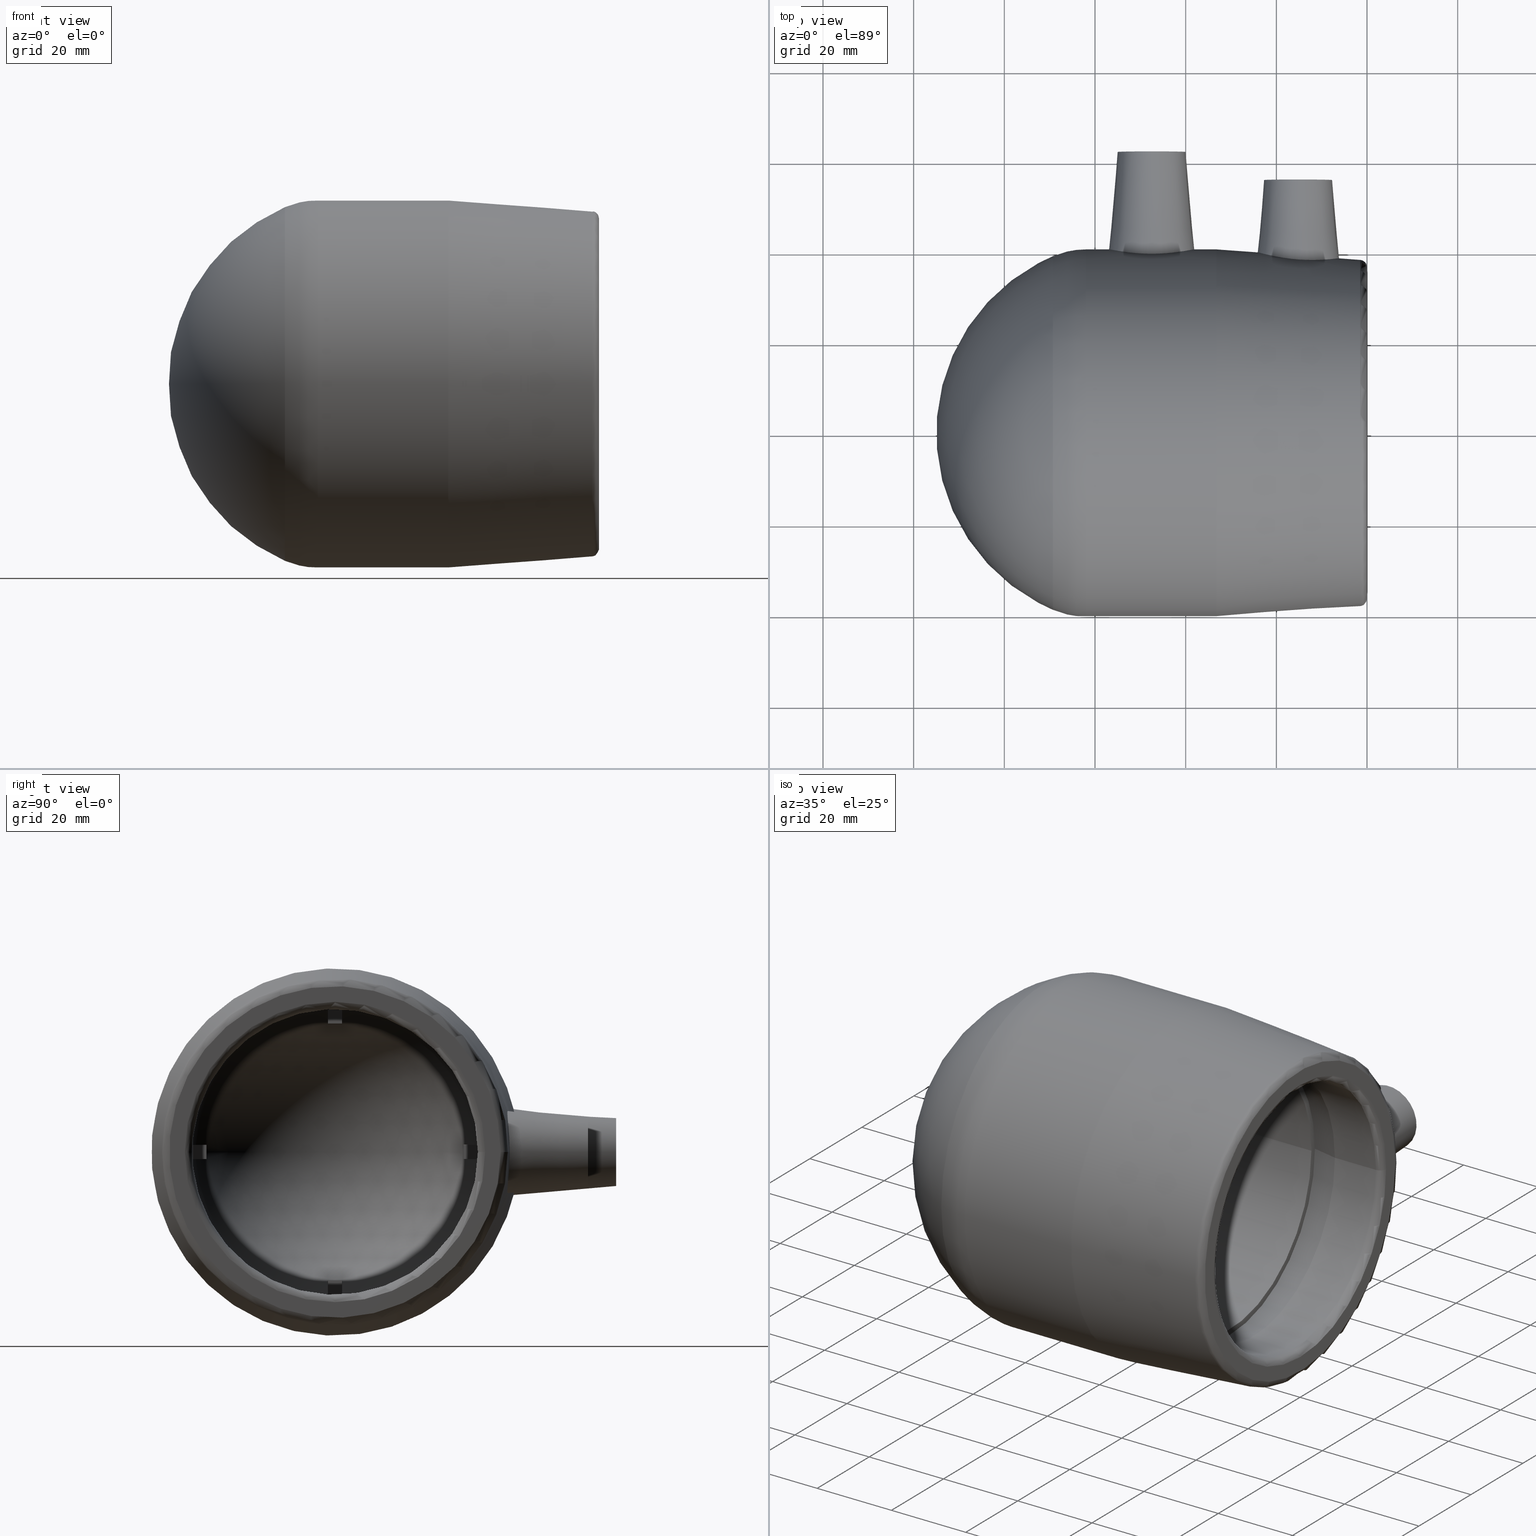
[diagram: canonical four-view strip — front | top / right | iso, engineering-drawing reading convention]
A machine part, canonical four-view strip (front | top / right | iso — engineering-drawing reading convention). The complete STEP part file that produces these views, byte-faithful:
ISO-10303-21;
HEADER;
/* Generated by software containing ST-Developer
 * from STEP Tools, Inc. (www.steptools.com) 
 */

FILE_DESCRIPTION(
/* description */ ('PLASSON END CAP MONOLITHIC 63'),
/* implementation_level */ '2;1');

FILE_NAME(
/* name */ 
'C:\\Dropbox\\KIMPROJECTS-Inventor\\99-16-3568-Processing\\ElectroFusi
on Fittings\\494204\\494204063.ipt.stp',
/* time_stamp */ '2017-11-06T09:17:10+02:00',
/* author */ ('\X2\041A043804400438043B043B\X0\'),
/* organization */ (''),
/* preprocessor_version */ 'ST-DEVELOPER v15.6',
/* originating_system */ 'Autodesk Inventor 2015',
/* authorisation */ '');

FILE_SCHEMA (('AUTOMOTIVE_DESIGN { 1 0 10303 214 3 1 1 }'));
ENDSEC;

DATA;
#10=MECHANICAL_DESIGN_GEOMETRIC_PRESENTATION_REPRESENTATION('',(#13),#1211);
#11=SHAPE_REPRESENTATION_RELATIONSHIP('SRR','None',#1220,#12);
#12=ADVANCED_BREP_SHAPE_REPRESENTATION($,(#14),#1210);
#13=STYLED_ITEM('',(#1229),#14);
#14=MANIFOLD_SOLID_BREP('Solid1',#616);
#15=CONICAL_SURFACE('',#683,7.5,5.);
#16=CONICAL_SURFACE('',#684,7.5,5.);
#17=CONICAL_SURFACE('',#688,39.285,4.17989949406495);
#18=CONICAL_SURFACE('',#702,32.1730957786217,11.9999999999999);
#19=FACE_BOUND('',#178,.T.);
#20=FACE_BOUND('',#180,.T.);
#21=FACE_BOUND('',#182,.T.);
#22=FACE_BOUND('',#184,.T.);
#23=FACE_BOUND('',#186,.T.);
#24=FACE_BOUND('',#188,.T.);
#25=FACE_BOUND('',#190,.T.);
#26=FACE_BOUND('',#192,.T.);
#27=FACE_BOUND('',#194,.T.);
#28=FACE_BOUND('',#196,.T.);
#29=FACE_BOUND('',#198,.T.);
#30=FACE_BOUND('',#200,.T.);
#31=FACE_BOUND('',#201,.T.);
#32=FACE_BOUND('',#203,.T.);
#33=FACE_BOUND('',#204,.T.);
#34=FACE_BOUND('',#206,.T.);
#35=FACE_BOUND('',#208,.T.);
#36=FACE_BOUND('',#210,.T.);
#37=FACE_BOUND('',#212,.T.);
#38=FACE_BOUND('',#214,.T.);
#39=FACE_BOUND('',#216,.T.);
#40=FACE_BOUND('',#218,.T.);
#41=FACE_BOUND('',#220,.T.);
#42=CYLINDRICAL_SURFACE('',#667,2.);
#43=CYLINDRICAL_SURFACE('',#669,5.);
#44=CYLINDRICAL_SURFACE('',#675,2.);
#45=CYLINDRICAL_SURFACE('',#677,5.);
#46=CYLINDRICAL_SURFACE('',#690,40.5);
#47=CYLINDRICAL_SURFACE('',#697,31.5);
#48=CYLINDRICAL_SURFACE('',#706,31.5);
#49=TOROIDAL_SURFACE('',#654,22.,9.5);
#50=TOROIDAL_SURFACE('',#656,22.,9.5);
#51=TOROIDAL_SURFACE('',#658,22.,9.5);
#52=TOROIDAL_SURFACE('',#660,22.,9.5);
#53=TOROIDAL_SURFACE('',#685,38.88,1.62);
#54=TOROIDAL_SURFACE('',#692,33.12,1.62);
#55=TOROIDAL_SURFACE('',#699,36.564073469893,1.62);
#56=TOROIDAL_SURFACE('',#700,22.,18.5);
#57=SPHERICAL_SURFACE('',#646,33.4396551724138);
#58=SPHERICAL_SURFACE('',#707,42.4396551724138);
#59=B_SPLINE_CURVE_WITH_KNOTS('',3,(#928,#929,#930,#931,#932,#933,#934,
#935),.UNSPECIFIED.,.F.,.F.,(4,2,2,4),(-0.363680377737832,-0.351549605211543,
-0.175774802605771,0.),.UNSPECIFIED.);
#60=B_SPLINE_CURVE_WITH_KNOTS('',3,(#945,#946,#947,#948,#949,#950,#951,
#952),.UNSPECIFIED.,.F.,.F.,(4,2,2,4),(0.,0.175774802605771,0.351549605211543,
0.363680377737833),.UNSPECIFIED.);
#61=B_SPLINE_CURVE_WITH_KNOTS('',3,(#965,#966,#967,#968,#969,#970,#971,
#972),.UNSPECIFIED.,.F.,.F.,(4,2,2,4),(-0.363680377737831,-0.351549605211543,
-0.175774802605772,0.),.UNSPECIFIED.);
#62=B_SPLINE_CURVE_WITH_KNOTS('',3,(#982,#983,#984,#985,#986,#987,#988,
#989),.UNSPECIFIED.,.F.,.F.,(4,2,2,4),(0.,0.175774802605771,0.351549605211543,
0.363680377737833),.UNSPECIFIED.);
#63=B_SPLINE_CURVE_WITH_KNOTS('',3,(#1002,#1003,#1004,#1005,#1006,#1007,
#1008,#1009),.UNSPECIFIED.,.F.,.F.,(4,2,2,4),(-0.363680377737832,-0.351549605211543,
-0.175774802605771,0.),.UNSPECIFIED.);
#64=B_SPLINE_CURVE_WITH_KNOTS('',3,(#1019,#1020,#1021,#1022,#1023,#1024,
#1025,#1026),.UNSPECIFIED.,.F.,.F.,(4,2,2,4),(0.,0.175774802605771,0.351549605211543,
0.363680377737832),.UNSPECIFIED.);
#65=B_SPLINE_CURVE_WITH_KNOTS('',3,(#1042,#1043,#1044,#1045,#1046,#1047,
#1048,#1049),.UNSPECIFIED.,.F.,.F.,(4,2,2,4),(-0.363680377737833,-0.351549605211543,
-0.175774802605772,0.),.UNSPECIFIED.);
#66=B_SPLINE_CURVE_WITH_KNOTS('',3,(#1056,#1057,#1058,#1059,#1060,#1061,
#1062,#1063),.UNSPECIFIED.,.F.,.F.,(4,2,2,4),(0.,0.175774802605772,0.351549605211544,
0.363680377737832),.UNSPECIFIED.);
#67=B_SPLINE_CURVE_WITH_KNOTS('',3,(#1104,#1105,#1106,#1107,#1108,#1109,
#1110,#1111,#1112,#1113,#1114,#1115,#1116,#1117,#1118,#1119,#1120,#1121,
#1122,#1123,#1124,#1125,#1126,#1127,#1128,#1129,#1130,#1131,#1132,#1133,
#1134,#1135,#1136,#1137),.UNSPECIFIED.,.T.,.F.,(4,2,2,2,2,2,2,2,2,2,2,2,
2,2,2,2,4),(0.,0.335070539798148,0.670141079596296,1.00666211891173,1.34318315822716,
1.6797041975426,2.01622523685803,2.35129577665618,2.68636631645433,3.03476870722596,
3.3831710979976,3.72649593510774,4.06982077221789,4.41314560932803,4.75647044643818,
5.10487283720982,5.45327522798145),.UNSPECIFIED.);
#68=B_SPLINE_CURVE_WITH_KNOTS('',3,(#1140,#1141,#1142,#1143,#1144,#1145,
#1146,#1147,#1148,#1149,#1150,#1151,#1152,#1153,#1154,#1155,#1156,#1157,
#1158,#1159,#1160,#1161,#1162,#1163,#1164,#1165,#1166,#1167,#1168,#1169,
#1170,#1171,#1172,#1173),.UNSPECIFIED.,.T.,.F.,(4,2,2,2,2,2,2,2,2,2,2,2,
2,2,2,2,4),(0.,0.357124679425614,0.714249358851229,1.07044964198426,1.42664992511729,
1.78285020825031,2.13905049138334,2.49617517080896,2.85329985023457,3.21042452966019,
3.5675492090858,3.92374949221883,4.27994977535186,4.63615005848489,4.99235034161791,
5.34947502104353,5.70659970046914),.UNSPECIFIED.);
#69=LINE('',#922,#89);
#70=LINE('',#924,#90);
#71=LINE('',#925,#91);
#72=LINE('',#938,#92);
#73=LINE('',#942,#93);
#74=LINE('',#959,#94);
#75=LINE('',#961,#95);
#76=LINE('',#962,#96);
#77=LINE('',#975,#97);
#78=LINE('',#979,#98);
#79=LINE('',#996,#99);
#80=LINE('',#998,#100);
#81=LINE('',#999,#101);
#82=LINE('',#1012,#102);
#83=LINE('',#1016,#103);
#84=LINE('',#1068,#104);
#85=LINE('',#1069,#105);
#86=LINE('',#1073,#106);
#87=LINE('',#1074,#107);
#88=LINE('',#1076,#108);
#89=VECTOR('',#722,3.11060035981514);
#90=VECTOR('',#723,3.15);
#91=VECTOR('',#724,3.11060035981514);
#92=VECTOR('',#729,8.22407639965051);
#93=VECTOR('',#734,8.2240763996505);
#94=VECTOR('',#743,3.11060035981514);
#95=VECTOR('',#744,3.15);
#96=VECTOR('',#745,3.11060035981514);
#97=VECTOR('',#750,8.2240763996505);
#98=VECTOR('',#755,8.2240763996505);
#99=VECTOR('',#764,3.11060035981514);
#100=VECTOR('',#765,3.15);
#101=VECTOR('',#766,3.11060035981514);
#102=VECTOR('',#771,8.2240763996505);
#103=VECTOR('',#776,8.2240763996505);
#104=VECTOR('',#815,3.11060035981514);
#105=VECTOR('',#816,8.22407639965051);
#106=VECTOR('',#821,3.11060035981514);
#107=VECTOR('',#822,3.15);
#108=VECTOR('',#825,8.22407639965051);
#109=FACE_OUTER_BOUND('',#154,.T.);
#110=FACE_OUTER_BOUND('',#155,.T.);
#111=FACE_OUTER_BOUND('',#156,.T.);
#112=FACE_OUTER_BOUND('',#157,.T.);
#113=FACE_OUTER_BOUND('',#158,.T.);
#114=FACE_OUTER_BOUND('',#159,.T.);
#115=FACE_OUTER_BOUND('',#160,.T.);
#116=FACE_OUTER_BOUND('',#161,.T.);
#117=FACE_OUTER_BOUND('',#162,.T.);
#118=FACE_OUTER_BOUND('',#163,.T.);
#119=FACE_OUTER_BOUND('',#164,.T.);
#120=FACE_OUTER_BOUND('',#165,.T.);
#121=FACE_OUTER_BOUND('',#166,.T.);
#122=FACE_OUTER_BOUND('',#167,.T.);
#123=FACE_OUTER_BOUND('',#168,.T.);
#124=FACE_OUTER_BOUND('',#169,.T.);
#125=FACE_OUTER_BOUND('',#170,.T.);
#126=FACE_OUTER_BOUND('',#171,.T.);
#127=FACE_OUTER_BOUND('',#172,.T.);
#128=FACE_OUTER_BOUND('',#173,.T.);
#129=FACE_OUTER_BOUND('',#174,.T.);
#130=FACE_OUTER_BOUND('',#175,.T.);
#131=FACE_OUTER_BOUND('',#176,.T.);
#132=FACE_OUTER_BOUND('',#177,.T.);
#133=FACE_OUTER_BOUND('',#179,.T.);
#134=FACE_OUTER_BOUND('',#181,.T.);
#135=FACE_OUTER_BOUND('',#183,.T.);
#136=FACE_OUTER_BOUND('',#185,.T.);
#137=FACE_OUTER_BOUND('',#187,.T.);
#138=FACE_OUTER_BOUND('',#189,.T.);
#139=FACE_OUTER_BOUND('',#191,.T.);
#140=FACE_OUTER_BOUND('',#193,.T.);
#141=FACE_OUTER_BOUND('',#195,.T.);
#142=FACE_OUTER_BOUND('',#197,.T.);
#143=FACE_OUTER_BOUND('',#199,.T.);
#144=FACE_OUTER_BOUND('',#202,.T.);
#145=FACE_OUTER_BOUND('',#205,.T.);
#146=FACE_OUTER_BOUND('',#207,.T.);
#147=FACE_OUTER_BOUND('',#209,.T.);
#148=FACE_OUTER_BOUND('',#211,.T.);
#149=FACE_OUTER_BOUND('',#213,.T.);
#150=FACE_OUTER_BOUND('',#215,.T.);
#151=FACE_OUTER_BOUND('',#217,.T.);
#152=FACE_OUTER_BOUND('',#219,.T.);
#153=FACE_OUTER_BOUND('',#221,.T.);
#154=EDGE_LOOP('',(#397));
#155=EDGE_LOOP('',(#398));
#156=EDGE_LOOP('',(#399,#400,#401,#402));
#157=EDGE_LOOP('',(#403,#404,#405,#406));
#158=EDGE_LOOP('',(#407,#408,#409,#410));
#159=EDGE_LOOP('',(#411,#412,#413,#414));
#160=EDGE_LOOP('',(#415,#416,#417,#418));
#161=EDGE_LOOP('',(#419,#420,#421,#422));
#162=EDGE_LOOP('',(#423,#424,#425,#426));
#163=EDGE_LOOP('',(#427,#428,#429,#430));
#164=EDGE_LOOP('',(#431,#432,#433,#434));
#165=EDGE_LOOP('',(#435,#436,#437,#438));
#166=EDGE_LOOP('',(#439,#440,#441,#442));
#167=EDGE_LOOP('',(#443,#444,#445,#446));
#168=EDGE_LOOP('',(#447,#448,#449,#450,#451,#452,#453,#454,#455,#456,#457,
#458,#459,#460,#461,#462));
#169=EDGE_LOOP('',(#463,#464,#465,#466));
#170=EDGE_LOOP('',(#467,#468,#469,#470));
#171=EDGE_LOOP('',(#471,#472,#473,#474));
#172=EDGE_LOOP('',(#475,#476,#477,#478));
#173=EDGE_LOOP('',(#479,#480,#481,#482));
#174=EDGE_LOOP('',(#483,#484,#485,#486));
#175=EDGE_LOOP('',(#487,#488,#489,#490));
#176=EDGE_LOOP('',(#491,#492,#493,#494));
#177=EDGE_LOOP('',(#495));
#178=EDGE_LOOP('',(#496));
#179=EDGE_LOOP('',(#497));
#180=EDGE_LOOP('',(#498));
#181=EDGE_LOOP('',(#499));
#182=EDGE_LOOP('',(#500));
#183=EDGE_LOOP('',(#501));
#184=EDGE_LOOP('',(#502));
#185=EDGE_LOOP('',(#503));
#186=EDGE_LOOP('',(#504));
#187=EDGE_LOOP('',(#505));
#188=EDGE_LOOP('',(#506));
#189=EDGE_LOOP('',(#507));
#190=EDGE_LOOP('',(#508));
#191=EDGE_LOOP('',(#509));
#192=EDGE_LOOP('',(#510));
#193=EDGE_LOOP('',(#511));
#194=EDGE_LOOP('',(#512));
#195=EDGE_LOOP('',(#513));
#196=EDGE_LOOP('',(#514));
#197=EDGE_LOOP('',(#515));
#198=EDGE_LOOP('',(#516));
#199=EDGE_LOOP('',(#517));
#200=EDGE_LOOP('',(#518));
#201=EDGE_LOOP('',(#519));
#202=EDGE_LOOP('',(#520));
#203=EDGE_LOOP('',(#521));
#204=EDGE_LOOP('',(#522));
#205=EDGE_LOOP('',(#523));
#206=EDGE_LOOP('',(#524));
#207=EDGE_LOOP('',(#525));
#208=EDGE_LOOP('',(#526));
#209=EDGE_LOOP('',(#527));
#210=EDGE_LOOP('',(#528));
#211=EDGE_LOOP('',(#529));
#212=EDGE_LOOP('',(#530));
#213=EDGE_LOOP('',(#531));
#214=EDGE_LOOP('',(#532));
#215=EDGE_LOOP('',(#533));
#216=EDGE_LOOP('',(#534));
#217=EDGE_LOOP('',(#535));
#218=EDGE_LOOP('',(#536));
#219=EDGE_LOOP('',(#537,#538,#539,#540,#541,#542,#543,#544));
#220=EDGE_LOOP('',(#545));
#221=EDGE_LOOP('',(#546));
#222=CIRCLE('',#619,2.);
#223=CIRCLE('',#621,2.);
#224=CIRCLE('',#623,31.5);
#225=CIRCLE('',#625,33.402543511684);
#226=CIRCLE('',#627,17.733810590224);
#227=CIRCLE('',#629,33.402543511684);
#228=CIRCLE('',#631,31.5);
#229=CIRCLE('',#633,33.402543511684);
#230=CIRCLE('',#635,17.733810590224);
#231=CIRCLE('',#637,33.402543511684);
#232=CIRCLE('',#639,31.5);
#233=CIRCLE('',#641,33.402543511684);
#234=CIRCLE('',#643,17.733810590224);
#235=CIRCLE('',#645,33.402543511684);
#236=CIRCLE('',#647,30.7302844796543);
#237=CIRCLE('',#648,33.402543511684);
#238=CIRCLE('',#649,17.733810590224);
#239=CIRCLE('',#650,33.402543511684);
#240=CIRCLE('',#651,30.7302844796543);
#241=CIRCLE('',#652,30.7302844796543);
#242=CIRCLE('',#653,30.7302844796543);
#243=CIRCLE('',#655,31.5);
#244=CIRCLE('',#657,31.5);
#245=CIRCLE('',#659,31.5);
#246=CIRCLE('',#661,31.5);
#247=CIRCLE('',#664,31.5);
#248=CIRCLE('',#668,2.);
#249=CIRCLE('',#670,5.);
#250=CIRCLE('',#671,5.);
#251=CIRCLE('',#674,7.5);
#252=CIRCLE('',#676,2.);
#253=CIRCLE('',#678,5.);
#254=CIRCLE('',#679,5.);
#255=CIRCLE('',#682,7.5);
#256=CIRCLE('',#686,40.5);
#257=CIRCLE('',#687,40.4956909770286);
#258=CIRCLE('',#689,38.1797644469216);
#259=CIRCLE('',#691,40.5);
#260=CIRCLE('',#693,33.12);
#261=CIRCLE('',#694,31.5);
#262=CIRCLE('',#696,36.564073469893);
#263=CIRCLE('',#698,31.5);
#264=CIRCLE('',#701,39.0010803024847);
#265=CIRCLE('',#703,32.8461915572435);
#266=CIRCLE('',#705,31.5);
#267=VERTEX_POINT('',#912);
#268=VERTEX_POINT('',#915);
#269=VERTEX_POINT('',#918);
#270=VERTEX_POINT('',#919);
#271=VERTEX_POINT('',#921);
#272=VERTEX_POINT('',#923);
#273=VERTEX_POINT('',#927);
#274=VERTEX_POINT('',#936);
#275=VERTEX_POINT('',#940);
#276=VERTEX_POINT('',#944);
#277=VERTEX_POINT('',#955);
#278=VERTEX_POINT('',#956);
#279=VERTEX_POINT('',#958);
#280=VERTEX_POINT('',#960);
#281=VERTEX_POINT('',#964);
#282=VERTEX_POINT('',#973);
#283=VERTEX_POINT('',#977);
#284=VERTEX_POINT('',#981);
#285=VERTEX_POINT('',#992);
#286=VERTEX_POINT('',#993);
#287=VERTEX_POINT('',#995);
#288=VERTEX_POINT('',#997);
#289=VERTEX_POINT('',#1001);
#290=VERTEX_POINT('',#1010);
#291=VERTEX_POINT('',#1014);
#292=VERTEX_POINT('',#1018);
#293=VERTEX_POINT('',#1029);
#294=VERTEX_POINT('',#1031);
#295=VERTEX_POINT('',#1033);
#296=VERTEX_POINT('',#1035);
#297=VERTEX_POINT('',#1041);
#298=VERTEX_POINT('',#1054);
#299=VERTEX_POINT('',#1067);
#300=VERTEX_POINT('',#1072);
#301=VERTEX_POINT('',#1079);
#302=VERTEX_POINT('',#1082);
#303=VERTEX_POINT('',#1084);
#304=VERTEX_POINT('',#1088);
#305=VERTEX_POINT('',#1091);
#306=VERTEX_POINT('',#1094);
#307=VERTEX_POINT('',#1096);
#308=VERTEX_POINT('',#1100);
#309=VERTEX_POINT('',#1103);
#310=VERTEX_POINT('',#1139);
#311=VERTEX_POINT('',#1175);
#312=VERTEX_POINT('',#1177);
#313=VERTEX_POINT('',#1180);
#314=VERTEX_POINT('',#1183);
#315=VERTEX_POINT('',#1186);
#316=VERTEX_POINT('',#1188);
#317=VERTEX_POINT('',#1191);
#318=VERTEX_POINT('',#1194);
#319=VERTEX_POINT('',#1198);
#320=VERTEX_POINT('',#1201);
#321=VERTEX_POINT('',#1204);
#322=EDGE_CURVE('',#267,#267,#222,.T.);
#323=EDGE_CURVE('',#268,#268,#223,.T.);
#324=EDGE_CURVE('',#269,#270,#224,.T.);
#325=EDGE_CURVE('',#271,#270,#69,.T.);
#326=EDGE_CURVE('',#271,#272,#70,.T.);
#327=EDGE_CURVE('',#269,#272,#71,.T.);
#328=EDGE_CURVE('',#273,#270,#59,.T.);
#329=EDGE_CURVE('',#274,#273,#225,.T.);
#330=EDGE_CURVE('',#274,#271,#72,.T.);
#331=EDGE_CURVE('',#275,#274,#226,.T.);
#332=EDGE_CURVE('',#272,#275,#73,.T.);
#333=EDGE_CURVE('',#269,#276,#60,.T.);
#334=EDGE_CURVE('',#276,#275,#227,.T.);
#335=EDGE_CURVE('',#277,#278,#228,.T.);
#336=EDGE_CURVE('',#279,#278,#74,.T.);
#337=EDGE_CURVE('',#279,#280,#75,.T.);
#338=EDGE_CURVE('',#277,#280,#76,.T.);
#339=EDGE_CURVE('',#281,#278,#61,.T.);
#340=EDGE_CURVE('',#282,#281,#229,.T.);
#341=EDGE_CURVE('',#282,#279,#77,.T.);
#342=EDGE_CURVE('',#283,#282,#230,.T.);
#343=EDGE_CURVE('',#280,#283,#78,.T.);
#344=EDGE_CURVE('',#277,#284,#62,.T.);
#345=EDGE_CURVE('',#284,#283,#231,.T.);
#346=EDGE_CURVE('',#285,#286,#232,.T.);
#347=EDGE_CURVE('',#287,#286,#79,.T.);
#348=EDGE_CURVE('',#287,#288,#80,.T.);
#349=EDGE_CURVE('',#285,#288,#81,.T.);
#350=EDGE_CURVE('',#289,#286,#63,.T.);
#351=EDGE_CURVE('',#290,#289,#233,.T.);
#352=EDGE_CURVE('',#290,#287,#82,.T.);
#353=EDGE_CURVE('',#291,#290,#234,.T.);
#354=EDGE_CURVE('',#288,#291,#83,.T.);
#355=EDGE_CURVE('',#285,#292,#64,.T.);
#356=EDGE_CURVE('',#292,#291,#235,.T.);
#357=EDGE_CURVE('',#273,#293,#236,.T.);
#358=EDGE_CURVE('',#293,#294,#237,.T.);
#359=EDGE_CURVE('',#294,#295,#238,.T.);
#360=EDGE_CURVE('',#295,#296,#239,.T.);
#361=EDGE_CURVE('',#296,#292,#240,.T.);
#362=EDGE_CURVE('',#289,#284,#241,.T.);
#363=EDGE_CURVE('',#281,#276,#242,.T.);
#364=EDGE_CURVE('',#296,#297,#65,.T.);
#365=EDGE_CURVE('',#297,#285,#243,.T.);
#366=EDGE_CURVE('',#286,#277,#244,.T.);
#367=EDGE_CURVE('',#270,#298,#245,.T.);
#368=EDGE_CURVE('',#298,#293,#66,.T.);
#369=EDGE_CURVE('',#278,#269,#246,.T.);
#370=EDGE_CURVE('',#298,#299,#84,.T.);
#371=EDGE_CURVE('',#299,#294,#85,.T.);
#372=EDGE_CURVE('',#298,#297,#247,.T.);
#373=EDGE_CURVE('',#300,#297,#86,.T.);
#374=EDGE_CURVE('',#300,#299,#87,.T.);
#375=EDGE_CURVE('',#295,#300,#88,.T.);
#376=EDGE_CURVE('',#301,#301,#248,.T.);
#377=EDGE_CURVE('',#302,#302,#249,.T.);
#378=EDGE_CURVE('',#303,#303,#250,.T.);
#379=EDGE_CURVE('',#304,#304,#251,.T.);
#380=EDGE_CURVE('',#305,#305,#252,.T.);
#381=EDGE_CURVE('',#306,#306,#253,.T.);
#382=EDGE_CURVE('',#307,#307,#254,.T.);
#383=EDGE_CURVE('',#308,#308,#255,.T.);
#384=EDGE_CURVE('',#309,#309,#67,.T.);
#385=EDGE_CURVE('',#310,#310,#68,.T.);
#386=EDGE_CURVE('',#311,#311,#256,.T.);
#387=EDGE_CURVE('',#312,#312,#257,.T.);
#388=EDGE_CURVE('',#313,#313,#258,.T.);
#389=EDGE_CURVE('',#314,#314,#259,.T.);
#390=EDGE_CURVE('',#315,#315,#260,.T.);
#391=EDGE_CURVE('',#316,#316,#261,.T.);
#392=EDGE_CURVE('',#317,#317,#262,.T.);
#393=EDGE_CURVE('',#318,#318,#263,.T.);
#394=EDGE_CURVE('',#319,#319,#264,.T.);
#395=EDGE_CURVE('',#320,#320,#265,.T.);
#396=EDGE_CURVE('',#321,#321,#266,.T.);
#397=ORIENTED_EDGE('',*,*,#322,.F.);
#398=ORIENTED_EDGE('',*,*,#323,.F.);
#399=ORIENTED_EDGE('',*,*,#324,.T.);
#400=ORIENTED_EDGE('',*,*,#325,.F.);
#401=ORIENTED_EDGE('',*,*,#326,.T.);
#402=ORIENTED_EDGE('',*,*,#327,.F.);
#403=ORIENTED_EDGE('',*,*,#328,.F.);
#404=ORIENTED_EDGE('',*,*,#329,.F.);
#405=ORIENTED_EDGE('',*,*,#330,.T.);
#406=ORIENTED_EDGE('',*,*,#325,.T.);
#407=ORIENTED_EDGE('',*,*,#331,.F.);
#408=ORIENTED_EDGE('',*,*,#332,.F.);
#409=ORIENTED_EDGE('',*,*,#326,.F.);
#410=ORIENTED_EDGE('',*,*,#330,.F.);
#411=ORIENTED_EDGE('',*,*,#333,.F.);
#412=ORIENTED_EDGE('',*,*,#327,.T.);
#413=ORIENTED_EDGE('',*,*,#332,.T.);
#414=ORIENTED_EDGE('',*,*,#334,.F.);
#415=ORIENTED_EDGE('',*,*,#335,.T.);
#416=ORIENTED_EDGE('',*,*,#336,.F.);
#417=ORIENTED_EDGE('',*,*,#337,.T.);
#418=ORIENTED_EDGE('',*,*,#338,.F.);
#419=ORIENTED_EDGE('',*,*,#339,.F.);
#420=ORIENTED_EDGE('',*,*,#340,.F.);
#421=ORIENTED_EDGE('',*,*,#341,.T.);
#422=ORIENTED_EDGE('',*,*,#336,.T.);
#423=ORIENTED_EDGE('',*,*,#342,.F.);
#424=ORIENTED_EDGE('',*,*,#343,.F.);
#425=ORIENTED_EDGE('',*,*,#337,.F.);
#426=ORIENTED_EDGE('',*,*,#341,.F.);
#427=ORIENTED_EDGE('',*,*,#344,.F.);
#428=ORIENTED_EDGE('',*,*,#338,.T.);
#429=ORIENTED_EDGE('',*,*,#343,.T.);
#430=ORIENTED_EDGE('',*,*,#345,.F.);
#431=ORIENTED_EDGE('',*,*,#346,.T.);
#432=ORIENTED_EDGE('',*,*,#347,.F.);
#433=ORIENTED_EDGE('',*,*,#348,.T.);
#434=ORIENTED_EDGE('',*,*,#349,.F.);
#435=ORIENTED_EDGE('',*,*,#350,.F.);
#436=ORIENTED_EDGE('',*,*,#351,.F.);
#437=ORIENTED_EDGE('',*,*,#352,.T.);
#438=ORIENTED_EDGE('',*,*,#347,.T.);
#439=ORIENTED_EDGE('',*,*,#353,.F.);
#440=ORIENTED_EDGE('',*,*,#354,.F.);
#441=ORIENTED_EDGE('',*,*,#348,.F.);
#442=ORIENTED_EDGE('',*,*,#352,.F.);
#443=ORIENTED_EDGE('',*,*,#355,.F.);
#444=ORIENTED_EDGE('',*,*,#349,.T.);
#445=ORIENTED_EDGE('',*,*,#354,.T.);
#446=ORIENTED_EDGE('',*,*,#356,.F.);
#447=ORIENTED_EDGE('',*,*,#334,.T.);
#448=ORIENTED_EDGE('',*,*,#331,.T.);
#449=ORIENTED_EDGE('',*,*,#329,.T.);
#450=ORIENTED_EDGE('',*,*,#357,.T.);
#451=ORIENTED_EDGE('',*,*,#358,.T.);
#452=ORIENTED_EDGE('',*,*,#359,.T.);
#453=ORIENTED_EDGE('',*,*,#360,.T.);
#454=ORIENTED_EDGE('',*,*,#361,.T.);
#455=ORIENTED_EDGE('',*,*,#356,.T.);
#456=ORIENTED_EDGE('',*,*,#353,.T.);
#457=ORIENTED_EDGE('',*,*,#351,.T.);
#458=ORIENTED_EDGE('',*,*,#362,.T.);
#459=ORIENTED_EDGE('',*,*,#345,.T.);
#460=ORIENTED_EDGE('',*,*,#342,.T.);
#461=ORIENTED_EDGE('',*,*,#340,.T.);
#462=ORIENTED_EDGE('',*,*,#363,.T.);
#463=ORIENTED_EDGE('',*,*,#355,.T.);
#464=ORIENTED_EDGE('',*,*,#361,.F.);
#465=ORIENTED_EDGE('',*,*,#364,.T.);
#466=ORIENTED_EDGE('',*,*,#365,.T.);
#467=ORIENTED_EDGE('',*,*,#344,.T.);
#468=ORIENTED_EDGE('',*,*,#362,.F.);
#469=ORIENTED_EDGE('',*,*,#350,.T.);
#470=ORIENTED_EDGE('',*,*,#366,.T.);
#471=ORIENTED_EDGE('',*,*,#328,.T.);
#472=ORIENTED_EDGE('',*,*,#367,.T.);
#473=ORIENTED_EDGE('',*,*,#368,.T.);
#474=ORIENTED_EDGE('',*,*,#357,.F.);
#475=ORIENTED_EDGE('',*,*,#333,.T.);
#476=ORIENTED_EDGE('',*,*,#363,.F.);
#477=ORIENTED_EDGE('',*,*,#339,.T.);
#478=ORIENTED_EDGE('',*,*,#369,.T.);
#479=ORIENTED_EDGE('',*,*,#358,.F.);
#480=ORIENTED_EDGE('',*,*,#368,.F.);
#481=ORIENTED_EDGE('',*,*,#370,.T.);
#482=ORIENTED_EDGE('',*,*,#371,.T.);
#483=ORIENTED_EDGE('',*,*,#372,.T.);
#484=ORIENTED_EDGE('',*,*,#373,.F.);
#485=ORIENTED_EDGE('',*,*,#374,.T.);
#486=ORIENTED_EDGE('',*,*,#370,.F.);
#487=ORIENTED_EDGE('',*,*,#360,.F.);
#488=ORIENTED_EDGE('',*,*,#375,.T.);
#489=ORIENTED_EDGE('',*,*,#373,.T.);
#490=ORIENTED_EDGE('',*,*,#364,.F.);
#491=ORIENTED_EDGE('',*,*,#359,.F.);
#492=ORIENTED_EDGE('',*,*,#371,.F.);
#493=ORIENTED_EDGE('',*,*,#374,.F.);
#494=ORIENTED_EDGE('',*,*,#375,.F.);
#495=ORIENTED_EDGE('',*,*,#322,.T.);
#496=ORIENTED_EDGE('',*,*,#376,.T.);
#497=ORIENTED_EDGE('',*,*,#377,.T.);
#498=ORIENTED_EDGE('',*,*,#378,.F.);
#499=ORIENTED_EDGE('',*,*,#377,.F.);
#500=ORIENTED_EDGE('',*,*,#376,.F.);
#501=ORIENTED_EDGE('',*,*,#379,.F.);
#502=ORIENTED_EDGE('',*,*,#378,.T.);
#503=ORIENTED_EDGE('',*,*,#323,.T.);
#504=ORIENTED_EDGE('',*,*,#380,.T.);
#505=ORIENTED_EDGE('',*,*,#381,.T.);
#506=ORIENTED_EDGE('',*,*,#382,.F.);
#507=ORIENTED_EDGE('',*,*,#381,.F.);
#508=ORIENTED_EDGE('',*,*,#380,.F.);
#509=ORIENTED_EDGE('',*,*,#383,.F.);
#510=ORIENTED_EDGE('',*,*,#382,.T.);
#511=ORIENTED_EDGE('',*,*,#379,.T.);
#512=ORIENTED_EDGE('',*,*,#384,.F.);
#513=ORIENTED_EDGE('',*,*,#383,.T.);
#514=ORIENTED_EDGE('',*,*,#385,.F.);
#515=ORIENTED_EDGE('',*,*,#386,.T.);
#516=ORIENTED_EDGE('',*,*,#387,.T.);
#517=ORIENTED_EDGE('',*,*,#388,.F.);
#518=ORIENTED_EDGE('',*,*,#384,.T.);
#519=ORIENTED_EDGE('',*,*,#387,.F.);
#520=ORIENTED_EDGE('',*,*,#389,.T.);
#521=ORIENTED_EDGE('',*,*,#385,.T.);
#522=ORIENTED_EDGE('',*,*,#386,.F.);
#523=ORIENTED_EDGE('',*,*,#390,.T.);
#524=ORIENTED_EDGE('',*,*,#391,.T.);
#525=ORIENTED_EDGE('',*,*,#392,.F.);
#526=ORIENTED_EDGE('',*,*,#390,.F.);
#527=ORIENTED_EDGE('',*,*,#393,.F.);
#528=ORIENTED_EDGE('',*,*,#391,.F.);
#529=ORIENTED_EDGE('',*,*,#392,.T.);
#530=ORIENTED_EDGE('',*,*,#388,.T.);
#531=ORIENTED_EDGE('',*,*,#389,.F.);
#532=ORIENTED_EDGE('',*,*,#394,.T.);
#533=ORIENTED_EDGE('',*,*,#395,.F.);
#534=ORIENTED_EDGE('',*,*,#393,.T.);
#535=ORIENTED_EDGE('',*,*,#395,.T.);
#536=ORIENTED_EDGE('',*,*,#396,.F.);
#537=ORIENTED_EDGE('',*,*,#365,.F.);
#538=ORIENTED_EDGE('',*,*,#372,.F.);
#539=ORIENTED_EDGE('',*,*,#367,.F.);
#540=ORIENTED_EDGE('',*,*,#324,.F.);
#541=ORIENTED_EDGE('',*,*,#369,.F.);
#542=ORIENTED_EDGE('',*,*,#335,.F.);
#543=ORIENTED_EDGE('',*,*,#366,.F.);
#544=ORIENTED_EDGE('',*,*,#346,.F.);
#545=ORIENTED_EDGE('',*,*,#396,.T.);
#546=ORIENTED_EDGE('',*,*,#394,.F.);
#547=PLANE('',#618);
#548=PLANE('',#620);
#549=PLANE('',#622);
#550=PLANE('',#624);
#551=PLANE('',#626);
#552=PLANE('',#628);
#553=PLANE('',#630);
#554=PLANE('',#632);
#555=PLANE('',#634);
#556=PLANE('',#636);
#557=PLANE('',#638);
#558=PLANE('',#640);
#559=PLANE('',#642);
#560=PLANE('',#644);
#561=PLANE('',#662);
#562=PLANE('',#663);
#563=PLANE('',#665);
#564=PLANE('',#666);
#565=PLANE('',#672);
#566=PLANE('',#673);
#567=PLANE('',#680);
#568=PLANE('',#681);
#569=PLANE('',#695);
#570=PLANE('',#704);
#571=ADVANCED_FACE('',(#109),#547,.T.);
#572=ADVANCED_FACE('',(#110),#548,.T.);
#573=ADVANCED_FACE('',(#111),#549,.T.);
#574=ADVANCED_FACE('',(#112),#550,.T.);
#575=ADVANCED_FACE('',(#113),#551,.T.);
#576=ADVANCED_FACE('',(#114),#552,.T.);
#577=ADVANCED_FACE('',(#115),#553,.T.);
#578=ADVANCED_FACE('',(#116),#554,.T.);
#579=ADVANCED_FACE('',(#117),#555,.T.);
#580=ADVANCED_FACE('',(#118),#556,.T.);
#581=ADVANCED_FACE('',(#119),#557,.T.);
#582=ADVANCED_FACE('',(#120),#558,.T.);
#583=ADVANCED_FACE('',(#121),#559,.T.);
#584=ADVANCED_FACE('',(#122),#560,.T.);
#585=ADVANCED_FACE('',(#123),#57,.F.);
#586=ADVANCED_FACE('',(#124),#49,.F.);
#587=ADVANCED_FACE('',(#125),#50,.F.);
#588=ADVANCED_FACE('',(#126),#51,.F.);
#589=ADVANCED_FACE('',(#127),#52,.F.);
#590=ADVANCED_FACE('',(#128),#561,.T.);
#591=ADVANCED_FACE('',(#129),#562,.T.);
#592=ADVANCED_FACE('',(#130),#563,.T.);
#593=ADVANCED_FACE('',(#131),#564,.T.);
#594=ADVANCED_FACE('',(#132,#19),#42,.T.);
#595=ADVANCED_FACE('',(#133,#20),#43,.F.);
#596=ADVANCED_FACE('',(#134,#21),#565,.T.);
#597=ADVANCED_FACE('',(#135,#22),#566,.T.);
#598=ADVANCED_FACE('',(#136,#23),#44,.T.);
#599=ADVANCED_FACE('',(#137,#24),#45,.F.);
#600=ADVANCED_FACE('',(#138,#25),#567,.T.);
#601=ADVANCED_FACE('',(#139,#26),#568,.T.);
#602=ADVANCED_FACE('',(#140,#27),#15,.T.);
#603=ADVANCED_FACE('',(#141,#28),#16,.T.);
#604=ADVANCED_FACE('',(#142,#29),#53,.T.);
#605=ADVANCED_FACE('',(#143,#30,#31),#17,.T.);
#606=ADVANCED_FACE('',(#144,#32,#33),#46,.T.);
#607=ADVANCED_FACE('',(#145,#34),#54,.T.);
#608=ADVANCED_FACE('',(#146,#35),#569,.T.);
#609=ADVANCED_FACE('',(#147,#36),#47,.F.);
#610=ADVANCED_FACE('',(#148,#37),#55,.T.);
#611=ADVANCED_FACE('',(#149,#38),#56,.T.);
#612=ADVANCED_FACE('',(#150,#39),#18,.F.);
#613=ADVANCED_FACE('',(#151,#40),#570,.T.);
#614=ADVANCED_FACE('',(#152,#41),#48,.F.);
#615=ADVANCED_FACE('',(#153),#58,.T.);
#616=CLOSED_SHELL('',(#571,#572,#573,#574,#575,#576,#577,#578,#579,#580,
#581,#582,#583,#584,#585,#586,#587,#588,#589,#590,#591,#592,#593,#594,#595,
#596,#597,#598,#599,#600,#601,#602,#603,#604,#605,#606,#607,#608,#609,#610,
#611,#612,#613,#614,#615));
#617=AXIS2_PLACEMENT_3D('placement',#910,#708,#709);
#618=AXIS2_PLACEMENT_3D('',#911,#710,#711);
#619=AXIS2_PLACEMENT_3D('',#913,#712,#713);
#620=AXIS2_PLACEMENT_3D('',#914,#714,#715);
#621=AXIS2_PLACEMENT_3D('',#916,#716,#717);
#622=AXIS2_PLACEMENT_3D('',#917,#718,#719);
#623=AXIS2_PLACEMENT_3D('',#920,#720,#721);
#624=AXIS2_PLACEMENT_3D('',#926,#725,#726);
#625=AXIS2_PLACEMENT_3D('',#937,#727,#728);
#626=AXIS2_PLACEMENT_3D('',#939,#730,#731);
#627=AXIS2_PLACEMENT_3D('',#941,#732,#733);
#628=AXIS2_PLACEMENT_3D('',#943,#735,#736);
#629=AXIS2_PLACEMENT_3D('',#953,#737,#738);
#630=AXIS2_PLACEMENT_3D('',#954,#739,#740);
#631=AXIS2_PLACEMENT_3D('',#957,#741,#742);
#632=AXIS2_PLACEMENT_3D('',#963,#746,#747);
#633=AXIS2_PLACEMENT_3D('',#974,#748,#749);
#634=AXIS2_PLACEMENT_3D('',#976,#751,#752);
#635=AXIS2_PLACEMENT_3D('',#978,#753,#754);
#636=AXIS2_PLACEMENT_3D('',#980,#756,#757);
#637=AXIS2_PLACEMENT_3D('',#990,#758,#759);
#638=AXIS2_PLACEMENT_3D('',#991,#760,#761);
#639=AXIS2_PLACEMENT_3D('',#994,#762,#763);
#640=AXIS2_PLACEMENT_3D('',#1000,#767,#768);
#641=AXIS2_PLACEMENT_3D('',#1011,#769,#770);
#642=AXIS2_PLACEMENT_3D('',#1013,#772,#773);
#643=AXIS2_PLACEMENT_3D('',#1015,#774,#775);
#644=AXIS2_PLACEMENT_3D('',#1017,#777,#778);
#645=AXIS2_PLACEMENT_3D('',#1027,#779,#780);
#646=AXIS2_PLACEMENT_3D('',#1028,#781,#782);
#647=AXIS2_PLACEMENT_3D('',#1030,#783,#784);
#648=AXIS2_PLACEMENT_3D('',#1032,#785,#786);
#649=AXIS2_PLACEMENT_3D('',#1034,#787,#788);
#650=AXIS2_PLACEMENT_3D('',#1036,#789,#790);
#651=AXIS2_PLACEMENT_3D('',#1037,#791,#792);
#652=AXIS2_PLACEMENT_3D('',#1038,#793,#794);
#653=AXIS2_PLACEMENT_3D('',#1039,#795,#796);
#654=AXIS2_PLACEMENT_3D('',#1040,#797,#798);
#655=AXIS2_PLACEMENT_3D('',#1050,#799,#800);
#656=AXIS2_PLACEMENT_3D('',#1051,#801,#802);
#657=AXIS2_PLACEMENT_3D('',#1052,#803,#804);
#658=AXIS2_PLACEMENT_3D('',#1053,#805,#806);
#659=AXIS2_PLACEMENT_3D('',#1055,#807,#808);
#660=AXIS2_PLACEMENT_3D('',#1064,#809,#810);
#661=AXIS2_PLACEMENT_3D('',#1065,#811,#812);
#662=AXIS2_PLACEMENT_3D('',#1066,#813,#814);
#663=AXIS2_PLACEMENT_3D('',#1070,#817,#818);
#664=AXIS2_PLACEMENT_3D('',#1071,#819,#820);
#665=AXIS2_PLACEMENT_3D('',#1075,#823,#824);
#666=AXIS2_PLACEMENT_3D('',#1077,#826,#827);
#667=AXIS2_PLACEMENT_3D('',#1078,#828,#829);
#668=AXIS2_PLACEMENT_3D('',#1080,#830,#831);
#669=AXIS2_PLACEMENT_3D('',#1081,#832,#833);
#670=AXIS2_PLACEMENT_3D('',#1083,#834,#835);
#671=AXIS2_PLACEMENT_3D('',#1085,#836,#837);
#672=AXIS2_PLACEMENT_3D('',#1086,#838,#839);
#673=AXIS2_PLACEMENT_3D('',#1087,#840,#841);
#674=AXIS2_PLACEMENT_3D('',#1089,#842,#843);
#675=AXIS2_PLACEMENT_3D('',#1090,#844,#845);
#676=AXIS2_PLACEMENT_3D('',#1092,#846,#847);
#677=AXIS2_PLACEMENT_3D('',#1093,#848,#849);
#678=AXIS2_PLACEMENT_3D('',#1095,#850,#851);
#679=AXIS2_PLACEMENT_3D('',#1097,#852,#853);
#680=AXIS2_PLACEMENT_3D('',#1098,#854,#855);
#681=AXIS2_PLACEMENT_3D('',#1099,#856,#857);
#682=AXIS2_PLACEMENT_3D('',#1101,#858,#859);
#683=AXIS2_PLACEMENT_3D('',#1102,#860,#861);
#684=AXIS2_PLACEMENT_3D('',#1138,#862,#863);
#685=AXIS2_PLACEMENT_3D('',#1174,#864,#865);
#686=AXIS2_PLACEMENT_3D('',#1176,#866,#867);
#687=AXIS2_PLACEMENT_3D('',#1178,#868,#869);
#688=AXIS2_PLACEMENT_3D('',#1179,#870,#871);
#689=AXIS2_PLACEMENT_3D('',#1181,#872,#873);
#690=AXIS2_PLACEMENT_3D('',#1182,#874,#875);
#691=AXIS2_PLACEMENT_3D('',#1184,#876,#877);
#692=AXIS2_PLACEMENT_3D('',#1185,#878,#879);
#693=AXIS2_PLACEMENT_3D('',#1187,#880,#881);
#694=AXIS2_PLACEMENT_3D('',#1189,#882,#883);
#695=AXIS2_PLACEMENT_3D('',#1190,#884,#885);
#696=AXIS2_PLACEMENT_3D('',#1192,#886,#887);
#697=AXIS2_PLACEMENT_3D('',#1193,#888,#889);
#698=AXIS2_PLACEMENT_3D('',#1195,#890,#891);
#699=AXIS2_PLACEMENT_3D('',#1196,#892,#893);
#700=AXIS2_PLACEMENT_3D('',#1197,#894,#895);
#701=AXIS2_PLACEMENT_3D('',#1199,#896,#897);
#702=AXIS2_PLACEMENT_3D('',#1200,#898,#899);
#703=AXIS2_PLACEMENT_3D('',#1202,#900,#901);
#704=AXIS2_PLACEMENT_3D('',#1203,#902,#903);
#705=AXIS2_PLACEMENT_3D('',#1205,#904,#905);
#706=AXIS2_PLACEMENT_3D('',#1206,#906,#907);
#707=AXIS2_PLACEMENT_3D('',#1207,#908,#909);
#708=DIRECTION('axis',(0.,0.,1.));
#709=DIRECTION('refdir',(1.,0.,0.));
#710=DIRECTION('center_axis',(0.,1.,0.));
#711=DIRECTION('ref_axis',(0.,0.,1.));
#712=DIRECTION('center_axis',(0.,-1.,0.));
#713=DIRECTION('ref_axis',(-1.,0.,0.));
#714=DIRECTION('center_axis',(0.,1.,0.));
#715=DIRECTION('ref_axis',(0.,0.,1.));
#716=DIRECTION('center_axis',(0.,-1.,0.));
#717=DIRECTION('ref_axis',(-1.,0.,0.));
#718=DIRECTION('center_axis',(1.,8.05707302783342E-31,4.38606627012407E-15));
#719=DIRECTION('ref_axis',(4.2632564145606E-15,-1.83697019872103E-16,-1.));
#720=DIRECTION('center_axis',(1.,2.94252051263958E-17,0.));
#721=DIRECTION('ref_axis',(0.,0.,-1.));
#722=DIRECTION('',(-4.38606627012407E-15,1.83697019872103E-16,1.));
#723=DIRECTION('',(0.,1.,-1.83697019872103E-16));
#724=DIRECTION('',(4.38606627012407E-15,-1.83697019872103E-16,-1.));
#725=DIRECTION('center_axis',(0.,-1.,1.83697019872103E-16));
#726=DIRECTION('ref_axis',(-1.,0.,0.));
#727=DIRECTION('center_axis',(0.,1.,-1.83697019872103E-16));
#728=DIRECTION('ref_axis',(0.,1.83697019872103E-16,1.));
#729=DIRECTION('',(1.,-1.75436267541534E-31,-9.55030558817338E-16));
#730=DIRECTION('center_axis',(-9.55030558817338E-16,-1.83697019872103E-16,
-1.));
#731=DIRECTION('ref_axis',(-1.,1.57772181044202E-31,1.06581410364015E-15));
#732=DIRECTION('center_axis',(9.55030558817338E-16,1.83697019872103E-16,
1.));
#733=DIRECTION('ref_axis',(0.,-1.,1.83697019872103E-16));
#734=DIRECTION('',(-1.,1.75436267541534E-31,9.55030558817338E-16));
#735=DIRECTION('center_axis',(0.,1.,-1.83697019872103E-16));
#736=DIRECTION('ref_axis',(1.,0.,0.));
#737=DIRECTION('center_axis',(0.,-1.,1.83697019872103E-16));
#738=DIRECTION('ref_axis',(0.,-1.83697019872103E-16,-1.));
#739=DIRECTION('center_axis',(1.,4.38606627012407E-15,-5.37138201855562E-31));
#740=DIRECTION('ref_axis',(4.2632564145606E-15,-1.,1.22464679914735E-16));
#741=DIRECTION('center_axis',(1.,2.94252051263958E-17,0.));
#742=DIRECTION('ref_axis',(0.,0.,-1.));
#743=DIRECTION('',(-4.38606627012407E-15,1.,-1.22464679914735E-16));
#744=DIRECTION('',(0.,-1.22464679914735E-16,-1.));
#745=DIRECTION('',(4.38606627012407E-15,-1.,1.22464679914735E-16));
#746=DIRECTION('center_axis',(0.,1.22464679914735E-16,1.));
#747=DIRECTION('ref_axis',(-1.,0.,0.));
#748=DIRECTION('center_axis',(0.,-1.22464679914735E-16,-1.));
#749=DIRECTION('ref_axis',(0.,1.,-1.22464679914735E-16));
#750=DIRECTION('',(1.,-9.55030558817338E-16,1.16957511694356E-31));
#751=DIRECTION('center_axis',(-9.55030558817338E-16,-1.,1.22464679914735E-16));
#752=DIRECTION('ref_axis',(-1.,1.06581410364015E-15,-1.18329135783152E-31));
#753=DIRECTION('center_axis',(9.55030558817338E-16,1.,-1.22464679914735E-16));
#754=DIRECTION('ref_axis',(0.,1.22464679914735E-16,1.));
#755=DIRECTION('',(-1.,9.55030558817338E-16,-1.16957511694356E-31));
#756=DIRECTION('center_axis',(0.,-1.22464679914735E-16,-1.));
#757=DIRECTION('ref_axis',(1.,0.,0.));
#758=DIRECTION('center_axis',(0.,1.22464679914735E-16,1.));
#759=DIRECTION('ref_axis',(0.,-1.,1.22464679914735E-16));
#760=DIRECTION('center_axis',(1.,-2.68569100927781E-31,-4.38606627012407E-15));
#761=DIRECTION('ref_axis',(4.2632564145606E-15,6.12323399573676E-17,1.));
#762=DIRECTION('center_axis',(1.,2.94252051263958E-17,0.));
#763=DIRECTION('ref_axis',(0.,0.,-1.));
#764=DIRECTION('',(-4.38606627012407E-15,-6.12323399573677E-17,-1.));
#765=DIRECTION('',(0.,-1.,6.12323399573677E-17));
#766=DIRECTION('',(4.38606627012407E-15,6.12323399573677E-17,1.));
#767=DIRECTION('center_axis',(0.,1.,-6.12323399573677E-17));
#768=DIRECTION('ref_axis',(-1.,0.,0.));
#769=DIRECTION('center_axis',(0.,-1.,6.12323399573677E-17));
#770=DIRECTION('ref_axis',(0.,-6.12323399573677E-17,-1.));
#771=DIRECTION('',(1.,5.8478755847178E-32,9.55030558817338E-16));
#772=DIRECTION('center_axis',(-9.55030558817338E-16,6.12323399573677E-17,
1.));
#773=DIRECTION('ref_axis',(-1.,-3.94430452610506E-32,-1.06581410364015E-15));
#774=DIRECTION('center_axis',(9.55030558817338E-16,-6.12323399573677E-17,
-1.));
#775=DIRECTION('ref_axis',(0.,1.,-6.12323399573677E-17));
#776=DIRECTION('',(-1.,-5.8478755847178E-32,-9.55030558817338E-16));
#777=DIRECTION('center_axis',(0.,-1.,6.12323399573677E-17));
#778=DIRECTION('ref_axis',(1.,0.,0.));
#779=DIRECTION('center_axis',(0.,1.,-6.12323399573677E-17));
#780=DIRECTION('ref_axis',(0.,6.12323399573677E-17,1.));
#781=DIRECTION('center_axis',(0.,0.,1.));
#782=DIRECTION('ref_axis',(1.,0.,0.));
#783=DIRECTION('center_axis',(1.,2.94252051263958E-17,0.));
#784=DIRECTION('ref_axis',(0.,0.,-1.));
#785=DIRECTION('center_axis',(0.,0.,-1.));
#786=DIRECTION('ref_axis',(0.,1.,0.));
#787=DIRECTION('center_axis',(9.55030558817338E-16,-1.,0.));
#788=DIRECTION('ref_axis',(0.,0.,-1.));
#789=DIRECTION('center_axis',(0.,0.,1.));
#790=DIRECTION('ref_axis',(0.,-1.,0.));
#791=DIRECTION('center_axis',(1.,2.94252051263958E-17,0.));
#792=DIRECTION('ref_axis',(0.,0.,-1.));
#793=DIRECTION('center_axis',(1.,2.94252051263958E-17,0.));
#794=DIRECTION('ref_axis',(0.,0.,-1.));
#795=DIRECTION('center_axis',(1.,2.94252051263958E-17,0.));
#796=DIRECTION('ref_axis',(0.,0.,-1.));
#797=DIRECTION('center_axis',(1.,2.94252051263958E-17,0.));
#798=DIRECTION('ref_axis',(0.,0.,-1.));
#799=DIRECTION('center_axis',(1.,2.94252051263958E-17,0.));
#800=DIRECTION('ref_axis',(0.,0.,-1.));
#801=DIRECTION('center_axis',(1.,2.94252051263958E-17,0.));
#802=DIRECTION('ref_axis',(0.,0.,-1.));
#803=DIRECTION('center_axis',(1.,2.94252051263958E-17,0.));
#804=DIRECTION('ref_axis',(0.,0.,-1.));
#805=DIRECTION('center_axis',(1.,2.94252051263958E-17,0.));
#806=DIRECTION('ref_axis',(0.,0.,-1.));
#807=DIRECTION('center_axis',(1.,2.94252051263958E-17,0.));
#808=DIRECTION('ref_axis',(0.,0.,-1.));
#809=DIRECTION('center_axis',(1.,2.94252051263958E-17,0.));
#810=DIRECTION('ref_axis',(0.,0.,-1.));
#811=DIRECTION('center_axis',(1.,2.94252051263958E-17,0.));
#812=DIRECTION('ref_axis',(0.,0.,-1.));
#813=DIRECTION('center_axis',(0.,0.,1.));
#814=DIRECTION('ref_axis',(1.,0.,0.));
#815=DIRECTION('',(4.38606627012407E-15,1.,0.));
#816=DIRECTION('',(-1.,-9.55030558817338E-16,0.));
#817=DIRECTION('center_axis',(1.,-4.38606627012407E-15,0.));
#818=DIRECTION('ref_axis',(4.2632564145606E-15,1.,0.));
#819=DIRECTION('center_axis',(1.,2.94252051263958E-17,0.));
#820=DIRECTION('ref_axis',(0.,0.,-1.));
#821=DIRECTION('',(-4.38606627012407E-15,-1.,0.));
#822=DIRECTION('',(0.,0.,1.));
#823=DIRECTION('center_axis',(0.,0.,-1.));
#824=DIRECTION('ref_axis',(-1.,0.,0.));
#825=DIRECTION('',(1.,9.55030558817338E-16,0.));
#826=DIRECTION('center_axis',(-9.55030558817338E-16,1.,0.));
#827=DIRECTION('ref_axis',(-1.,-1.06581410364015E-15,0.));
#828=DIRECTION('center_axis',(0.,-1.,0.));
#829=DIRECTION('ref_axis',(-1.,0.,0.));
#830=DIRECTION('center_axis',(0.,1.,0.));
#831=DIRECTION('ref_axis',(-1.,0.,0.));
#832=DIRECTION('center_axis',(0.,-1.,0.));
#833=DIRECTION('ref_axis',(-1.,0.,0.));
#834=DIRECTION('center_axis',(0.,-1.,0.));
#835=DIRECTION('ref_axis',(-1.,0.,0.));
#836=DIRECTION('center_axis',(0.,-1.,0.));
#837=DIRECTION('ref_axis',(-1.,0.,0.));
#838=DIRECTION('center_axis',(0.,1.,0.));
#839=DIRECTION('ref_axis',(0.,0.,1.));
#840=DIRECTION('center_axis',(0.,1.,0.));
#841=DIRECTION('ref_axis',(0.,0.,1.));
#842=DIRECTION('center_axis',(0.,-1.,0.));
#843=DIRECTION('ref_axis',(1.,0.,0.));
#844=DIRECTION('center_axis',(0.,-1.,0.));
#845=DIRECTION('ref_axis',(-1.,0.,0.));
#846=DIRECTION('center_axis',(0.,1.,0.));
#847=DIRECTION('ref_axis',(-1.,0.,0.));
#848=DIRECTION('center_axis',(0.,-1.,0.));
#849=DIRECTION('ref_axis',(-1.,0.,0.));
#850=DIRECTION('center_axis',(0.,-1.,0.));
#851=DIRECTION('ref_axis',(-1.,0.,0.));
#852=DIRECTION('center_axis',(0.,-1.,0.));
#853=DIRECTION('ref_axis',(-1.,0.,0.));
#854=DIRECTION('center_axis',(0.,1.,0.));
#855=DIRECTION('ref_axis',(0.,0.,1.));
#856=DIRECTION('center_axis',(0.,1.,0.));
#857=DIRECTION('ref_axis',(0.,0.,1.));
#858=DIRECTION('center_axis',(0.,-1.,0.));
#859=DIRECTION('ref_axis',(1.,0.,0.));
#860=DIRECTION('center_axis',(0.,-1.,0.));
#861=DIRECTION('ref_axis',(1.,0.,0.));
#862=DIRECTION('center_axis',(0.,-1.,0.));
#863=DIRECTION('ref_axis',(1.,0.,0.));
#864=DIRECTION('center_axis',(1.,2.94252051263958E-17,0.));
#865=DIRECTION('ref_axis',(0.,0.,-1.));
#866=DIRECTION('center_axis',(1.,2.94252051263958E-17,0.));
#867=DIRECTION('ref_axis',(2.93403847171386E-17,-1.,0.));
#868=DIRECTION('center_axis',(-1.,0.,0.));
#869=DIRECTION('ref_axis',(0.,-1.,-6.12323399573676E-17));
#870=DIRECTION('center_axis',(-1.,-2.94252051263958E-17,0.));
#871=DIRECTION('ref_axis',(1.42575736179444E-17,-1.,0.));
#872=DIRECTION('center_axis',(1.,5.81576675869027E-17,3.62844948336655E-33));
#873=DIRECTION('ref_axis',(5.81576675869027E-17,-1.,-6.12323399573677E-17));
#874=DIRECTION('center_axis',(1.,2.94252051263958E-17,0.));
#875=DIRECTION('ref_axis',(0.,1.,0.));
#876=DIRECTION('center_axis',(1.,2.94252051263958E-17,0.));
#877=DIRECTION('ref_axis',(0.,0.,-1.));
#878=DIRECTION('center_axis',(1.,2.94252051263958E-17,0.));
#879=DIRECTION('ref_axis',(0.,0.,-1.));
#880=DIRECTION('center_axis',(1.,2.94252051263958E-17,0.));
#881=DIRECTION('ref_axis',(2.94252051263958E-17,-1.,1.83697019872103E-16));
#882=DIRECTION('center_axis',(-1.,-2.94252051263958E-17,0.));
#883=DIRECTION('ref_axis',(2.64338815386942E-17,-1.,1.83697019872103E-16));
#884=DIRECTION('center_axis',(1.,2.94252051263958E-17,0.));
#885=DIRECTION('ref_axis',(0.,0.,-1.));
#886=DIRECTION('center_axis',(-1.,-2.94252051263958E-17,0.));
#887=DIRECTION('ref_axis',(2.94252051263958E-17,-1.,0.));
#888=DIRECTION('center_axis',(1.,2.94252051263958E-17,0.));
#889=DIRECTION('ref_axis',(0.,1.,0.));
#890=DIRECTION('center_axis',(1.,2.94252051263958E-17,0.));
#891=DIRECTION('ref_axis',(0.,0.,-1.));
#892=DIRECTION('center_axis',(-1.,-2.94252051263958E-17,0.));
#893=DIRECTION('ref_axis',(0.,0.,1.));
#894=DIRECTION('center_axis',(1.,2.94252051263958E-17,0.));
#895=DIRECTION('ref_axis',(0.,0.,-1.));
#896=DIRECTION('center_axis',(1.,2.94252051263958E-17,0.));
#897=DIRECTION('ref_axis',(0.,0.,-1.));
#898=DIRECTION('center_axis',(-1.,-2.94252051263958E-17,0.));
#899=DIRECTION('ref_axis',(0.,1.,0.));
#900=DIRECTION('center_axis',(1.,2.94252051263958E-17,0.));
#901=DIRECTION('ref_axis',(0.,0.,-1.));
#902=DIRECTION('center_axis',(1.,2.94252051263958E-17,0.));
#903=DIRECTION('ref_axis',(0.,0.,-1.));
#904=DIRECTION('center_axis',(1.,2.94252051263958E-17,0.));
#905=DIRECTION('ref_axis',(0.,0.,-1.));
#906=DIRECTION('center_axis',(1.,2.94252051263958E-17,0.));
#907=DIRECTION('ref_axis',(0.,1.,0.));
#908=DIRECTION('center_axis',(0.,0.,1.));
#909=DIRECTION('ref_axis',(1.,0.,0.));
#910=CARTESIAN_POINT('',(0.,0.,0.));
#911=CARTESIAN_POINT('Origin',(-15.2,52.8,0.));
#912=CARTESIAN_POINT('',(-13.2,52.8,-2.44929359829471E-16));
#913=CARTESIAN_POINT('Origin',(-15.2,52.8,0.));
#914=CARTESIAN_POINT('Origin',(-47.5,59.,0.));
#915=CARTESIAN_POINT('',(-45.5,59.,-2.44929359829471E-16));
#916=CARTESIAN_POINT('Origin',(-47.5,59.,0.));
#917=CARTESIAN_POINT('Origin',(-62.,4.7600626362371E-15,32.4));
#918=CARTESIAN_POINT('',(-62.,1.57500000000001,31.4606003598151));
#919=CARTESIAN_POINT('',(-62.,-1.575,31.4606003598151));
#920=CARTESIAN_POINT('Origin',(-62.,-1.82436271783654E-15,0.));
#921=CARTESIAN_POINT('',(-62.,-1.575,28.35));
#922=CARTESIAN_POINT('',(-62.,-1.575,28.35));
#923=CARTESIAN_POINT('',(-62.,1.575,28.35));
#924=CARTESIAN_POINT('',(-62.,4.01608970575509E-15,28.35));
#925=CARTESIAN_POINT('',(-62.,1.575,28.35));
#926=CARTESIAN_POINT('Origin',(-66.65,-1.575,30.375));
#927=CARTESIAN_POINT('',(-65.7459488656824,-1.575,30.6898966958262));
#928=CARTESIAN_POINT('Ctrl Pts',(-65.7459488656824,-1.575,30.6898966958262));
#929=CARTESIAN_POINT('Ctrl Pts',(-65.7083415904558,-1.575,30.7060542816599));
#930=CARTESIAN_POINT('Ctrl Pts',(-65.6708487693632,-1.575,30.7218744621851));
#931=CARTESIAN_POINT('Ctrl Pts',(-65.0922316119794,-1.575,30.96170546361));
#932=CARTESIAN_POINT('Ctrl Pts',(-64.4789626716985,-1.575,31.1533005625782));
#933=CARTESIAN_POINT('Ctrl Pts',(-63.2258049807318,-1.575,31.402748566707));
#934=CARTESIAN_POINT('Ctrl Pts',(-62.5859160086859,-1.575,31.4606003598151));
#935=CARTESIAN_POINT('Ctrl Pts',(-62.,-1.575,31.4606003598151));
#936=CARTESIAN_POINT('',(-70.2240763996505,-1.575,28.35));
#937=CARTESIAN_POINT('Origin',(-52.5603448275862,-1.575,2.89322806298562E-16));
#938=CARTESIAN_POINT('',(-71.3,-1.575,28.35));
#939=CARTESIAN_POINT('Origin',(-62.,4.01608970575509E-15,28.35));
#940=CARTESIAN_POINT('',(-70.2240763996505,1.575,28.35));
#941=CARTESIAN_POINT('Origin',(-52.5603448275862,2.41241602636651E-15,28.35));
#942=CARTESIAN_POINT('',(-71.3,1.575,28.35));
#943=CARTESIAN_POINT('Origin',(-66.65,1.57500000000001,30.375));
#944=CARTESIAN_POINT('',(-65.7459488656824,1.57500000000001,30.6898966958262));
#945=CARTESIAN_POINT('Ctrl Pts',(-62.,1.57500000000001,31.4606003598151));
#946=CARTESIAN_POINT('Ctrl Pts',(-62.5859160086859,1.57500000000001,31.4606003598151));
#947=CARTESIAN_POINT('Ctrl Pts',(-63.2258049807318,1.57500000000001,31.402748566707));
#948=CARTESIAN_POINT('Ctrl Pts',(-64.4789626716985,1.57500000000001,31.1533005625782));
#949=CARTESIAN_POINT('Ctrl Pts',(-65.0922316119794,1.57500000000001,30.96170546361));
#950=CARTESIAN_POINT('Ctrl Pts',(-65.6708487693632,1.57500000000001,30.7218744621851));
#951=CARTESIAN_POINT('Ctrl Pts',(-65.7083415904558,1.57500000000001,30.7060542816599));
#952=CARTESIAN_POINT('Ctrl Pts',(-65.7459488656824,1.57500000000001,30.6898966958262));
#953=CARTESIAN_POINT('Origin',(-52.5603448275862,1.575,-2.89322806298563E-16));
#954=CARTESIAN_POINT('Origin',(-62.,32.4,-3.96785562923742E-15));
#955=CARTESIAN_POINT('',(-62.,31.4606003598151,-1.575));
#956=CARTESIAN_POINT('',(-62.,31.4606003598151,1.575));
#957=CARTESIAN_POINT('Origin',(-62.,-1.82436271783654E-15,0.));
#958=CARTESIAN_POINT('',(-62.,28.35,1.575));
#959=CARTESIAN_POINT('',(-62.,28.35,1.575));
#960=CARTESIAN_POINT('',(-62.,28.35,-1.575));
#961=CARTESIAN_POINT('',(-62.,28.35,-3.47187367558275E-15));
#962=CARTESIAN_POINT('',(-62.,28.35,-1.575));
#963=CARTESIAN_POINT('Origin',(-66.65,30.375,1.575));
#964=CARTESIAN_POINT('',(-65.7459488656824,30.6898966958262,1.575));
#965=CARTESIAN_POINT('Ctrl Pts',(-65.7459488656824,30.6898966958262,1.575));
#966=CARTESIAN_POINT('Ctrl Pts',(-65.7083415904558,30.7060542816598,1.575));
#967=CARTESIAN_POINT('Ctrl Pts',(-65.6708487693632,30.7218744621851,1.575));
#968=CARTESIAN_POINT('Ctrl Pts',(-65.0922316119794,30.96170546361,1.575));
#969=CARTESIAN_POINT('Ctrl Pts',(-64.4789626716985,31.1533005625782,1.575));
#970=CARTESIAN_POINT('Ctrl Pts',(-63.2258049807318,31.402748566707,1.575));
#971=CARTESIAN_POINT('Ctrl Pts',(-62.5859160086859,31.4606003598151,1.575));
#972=CARTESIAN_POINT('Ctrl Pts',(-62.,31.4606003598151,1.575));
#973=CARTESIAN_POINT('',(-70.2240763996505,28.35,1.575));
#974=CARTESIAN_POINT('Origin',(-52.5603448275862,-2.6025126161419E-15,1.575));
#975=CARTESIAN_POINT('',(-71.3,28.35,1.575));
#976=CARTESIAN_POINT('Origin',(-62.,28.35,-3.47187367558275E-15));
#977=CARTESIAN_POINT('',(-70.2240763996505,28.35,-1.575));
#978=CARTESIAN_POINT('Origin',(-52.5603448275862,28.35,-3.47187367558275E-15));
#979=CARTESIAN_POINT('',(-71.3,28.35,-1.575));
#980=CARTESIAN_POINT('Origin',(-66.65,30.375,-1.575));
#981=CARTESIAN_POINT('',(-65.7459488656824,30.6898966958262,-1.575));
#982=CARTESIAN_POINT('Ctrl Pts',(-62.,31.4606003598151,-1.575));
#983=CARTESIAN_POINT('Ctrl Pts',(-62.5859160086859,31.4606003598151,-1.575));
#984=CARTESIAN_POINT('Ctrl Pts',(-63.2258049807318,31.402748566707,-1.575));
#985=CARTESIAN_POINT('Ctrl Pts',(-64.4789626716985,31.1533005625782,-1.575));
#986=CARTESIAN_POINT('Ctrl Pts',(-65.0922316119794,30.96170546361,-1.575));
#987=CARTESIAN_POINT('Ctrl Pts',(-65.6708487693632,30.7218744621851,-1.575));
#988=CARTESIAN_POINT('Ctrl Pts',(-65.7083415904558,30.7060542816599,-1.575));
#989=CARTESIAN_POINT('Ctrl Pts',(-65.7459488656824,30.6898966958262,-1.575));
#990=CARTESIAN_POINT('Origin',(-52.5603448275862,-2.98827635787331E-15,
-1.575));
#991=CARTESIAN_POINT('Origin',(-62.,-3.17564862223774E-15,-32.4));
#992=CARTESIAN_POINT('',(-62.,-1.575,-31.4606003598151));
#993=CARTESIAN_POINT('',(-62.,1.575,-31.4606003598151));
#994=CARTESIAN_POINT('Origin',(-62.,-1.82436271783654E-15,0.));
#995=CARTESIAN_POINT('',(-62.,1.575,-28.35));
#996=CARTESIAN_POINT('',(-62.,1.575,-28.35));
#997=CARTESIAN_POINT('',(-62.,-1.575,-28.35));
#998=CARTESIAN_POINT('',(-62.,-2.92765764541041E-15,-28.35));
#999=CARTESIAN_POINT('',(-62.,-1.575,-28.35));
#1000=CARTESIAN_POINT('Origin',(-66.65,1.575,-30.375));
#1001=CARTESIAN_POINT('',(-65.7459488656824,1.575,-30.6898966958262));
#1002=CARTESIAN_POINT('Ctrl Pts',(-65.7459488656824,1.575,-30.6898966958262));
#1003=CARTESIAN_POINT('Ctrl Pts',(-65.7083415904558,1.575,-30.7060542816599));
#1004=CARTESIAN_POINT('Ctrl Pts',(-65.6708487693632,1.575,-30.7218744621851));
#1005=CARTESIAN_POINT('Ctrl Pts',(-65.0922316119794,1.575,-30.96170546361));
#1006=CARTESIAN_POINT('Ctrl Pts',(-64.4789626716985,1.575,-31.1533005625782));
#1007=CARTESIAN_POINT('Ctrl Pts',(-63.2258049807318,1.575,-31.402748566707));
#1008=CARTESIAN_POINT('Ctrl Pts',(-62.5859160086859,1.575,-31.4606003598151));
#1009=CARTESIAN_POINT('Ctrl Pts',(-62.,1.575,-31.4606003598151));
#1010=CARTESIAN_POINT('',(-70.2240763996505,1.575,-28.35));
#1011=CARTESIAN_POINT('Origin',(-52.5603448275862,1.575,-9.64409354328542E-17));
#1012=CARTESIAN_POINT('',(-71.3,1.575,-28.35));
#1013=CARTESIAN_POINT('Origin',(-62.,-2.92765764541041E-15,-28.35));
#1014=CARTESIAN_POINT('',(-70.2240763996505,-1.575,-28.35));
#1015=CARTESIAN_POINT('Origin',(-52.5603448275862,-4.53133132479898E-15,
-28.35));
#1016=CARTESIAN_POINT('',(-71.3,-1.575,-28.35));
#1017=CARTESIAN_POINT('Origin',(-66.65,-1.575,-30.375));
#1018=CARTESIAN_POINT('',(-65.7459488656824,-1.575,-30.6898966958262));
#1019=CARTESIAN_POINT('Ctrl Pts',(-62.,-1.575,-31.4606003598151));
#1020=CARTESIAN_POINT('Ctrl Pts',(-62.5859160086859,-1.575,-31.4606003598151));
#1021=CARTESIAN_POINT('Ctrl Pts',(-63.2258049807318,-1.575,-31.402748566707));
#1022=CARTESIAN_POINT('Ctrl Pts',(-64.4789626716985,-1.575,-31.1533005625782));
#1023=CARTESIAN_POINT('Ctrl Pts',(-65.0922316119794,-1.575,-30.96170546361));
#1024=CARTESIAN_POINT('Ctrl Pts',(-65.6708487693632,-1.575,-30.7218744621851));
#1025=CARTESIAN_POINT('Ctrl Pts',(-65.7083415904558,-1.575,-30.7060542816598));
#1026=CARTESIAN_POINT('Ctrl Pts',(-65.7459488656824,-1.575,-30.6898966958262));
#1027=CARTESIAN_POINT('Origin',(-52.5603448275862,-1.575,9.6440935432854E-17));
#1028=CARTESIAN_POINT('Origin',(-52.5603448275862,-2.79539448700761E-15,
0.));
#1029=CARTESIAN_POINT('',(-65.7459488656824,-30.6898966958262,1.575));
#1030=CARTESIAN_POINT('Origin',(-65.7459488656824,-1.93458803160224E-15,
0.));
#1031=CARTESIAN_POINT('',(-70.2240763996505,-28.35,1.575));
#1032=CARTESIAN_POINT('Origin',(-52.5603448275862,-2.79539448700761E-15,
1.575));
#1033=CARTESIAN_POINT('',(-70.2240763996505,-28.35,-1.575));
#1034=CARTESIAN_POINT('Origin',(-52.5603448275862,-28.35,0.));
#1035=CARTESIAN_POINT('',(-65.7459488656824,-30.6898966958262,-1.575));
#1036=CARTESIAN_POINT('Origin',(-52.5603448275862,-2.79539448700761E-15,
-1.575));
#1037=CARTESIAN_POINT('Origin',(-65.7459488656824,-1.93458803160224E-15,
0.));
#1038=CARTESIAN_POINT('Origin',(-65.7459488656824,-1.93458803160224E-15,
0.));
#1039=CARTESIAN_POINT('Origin',(-65.7459488656824,-1.93458803160224E-15,
0.));
#1040=CARTESIAN_POINT('Origin',(-62.,-1.82436271783654E-15,0.));
#1041=CARTESIAN_POINT('',(-62.,-31.4606003598151,-1.575));
#1042=CARTESIAN_POINT('Ctrl Pts',(-65.7459488656824,-30.6898966958262,-1.575));
#1043=CARTESIAN_POINT('Ctrl Pts',(-65.7083415904558,-30.7060542816599,-1.575));
#1044=CARTESIAN_POINT('Ctrl Pts',(-65.6708487693632,-30.7218744621851,-1.575));
#1045=CARTESIAN_POINT('Ctrl Pts',(-65.0922316119794,-30.96170546361,-1.575));
#1046=CARTESIAN_POINT('Ctrl Pts',(-64.4789626716985,-31.1533005625782,-1.575));
#1047=CARTESIAN_POINT('Ctrl Pts',(-63.2258049807318,-31.402748566707,-1.575));
#1048=CARTESIAN_POINT('Ctrl Pts',(-62.5859160086859,-31.4606003598151,-1.575));
#1049=CARTESIAN_POINT('Ctrl Pts',(-62.,-31.4606003598151,-1.575));
#1050=CARTESIAN_POINT('Origin',(-62.,-1.82436271783654E-15,0.));
#1051=CARTESIAN_POINT('Origin',(-62.,-1.82436271783654E-15,0.));
#1052=CARTESIAN_POINT('Origin',(-62.,-1.82436271783654E-15,0.));
#1053=CARTESIAN_POINT('Origin',(-62.,-1.82436271783654E-15,0.));
#1054=CARTESIAN_POINT('',(-62.,-31.4606003598151,1.575));
#1055=CARTESIAN_POINT('Origin',(-62.,-1.82436271783654E-15,0.));
#1056=CARTESIAN_POINT('Ctrl Pts',(-62.,-31.4606003598151,1.575));
#1057=CARTESIAN_POINT('Ctrl Pts',(-62.5859160086859,-31.4606003598151,1.575));
#1058=CARTESIAN_POINT('Ctrl Pts',(-63.2258049807318,-31.402748566707,1.575));
#1059=CARTESIAN_POINT('Ctrl Pts',(-64.4789626716985,-31.1533005625782,1.575));
#1060=CARTESIAN_POINT('Ctrl Pts',(-65.0922316119794,-30.96170546361,1.575));
#1061=CARTESIAN_POINT('Ctrl Pts',(-65.6708487693632,-30.7218744621851,1.575));
#1062=CARTESIAN_POINT('Ctrl Pts',(-65.7083415904558,-30.7060542816598,1.575));
#1063=CARTESIAN_POINT('Ctrl Pts',(-65.7459488656824,-30.6898966958262,1.575));
#1064=CARTESIAN_POINT('Origin',(-62.,-1.82436271783654E-15,0.));
#1065=CARTESIAN_POINT('Origin',(-62.,-1.82436271783654E-15,0.));
#1066=CARTESIAN_POINT('Origin',(-66.65,-30.375,1.575));
#1067=CARTESIAN_POINT('',(-62.,-28.35,1.575));
#1068=CARTESIAN_POINT('',(-62.,-28.35,1.575));
#1069=CARTESIAN_POINT('',(-71.3,-28.35,1.575));
#1070=CARTESIAN_POINT('Origin',(-62.,-32.4,0.));
#1071=CARTESIAN_POINT('Origin',(-62.,-1.82436271783654E-15,0.));
#1072=CARTESIAN_POINT('',(-62.,-28.35,-1.575));
#1073=CARTESIAN_POINT('',(-62.,-28.35,-1.575));
#1074=CARTESIAN_POINT('',(-62.,-28.35,0.));
#1075=CARTESIAN_POINT('Origin',(-66.65,-30.375,-1.575));
#1076=CARTESIAN_POINT('',(-71.3,-28.35,-1.575));
#1077=CARTESIAN_POINT('Origin',(-62.,-28.35,0.));
#1078=CARTESIAN_POINT('Origin',(-15.2,55.8,0.));
#1079=CARTESIAN_POINT('',(-13.2,41.8,-2.44929359829471E-16));
#1080=CARTESIAN_POINT('Origin',(-15.2,41.8,0.));
#1081=CARTESIAN_POINT('Origin',(-15.2,55.8,0.));
#1082=CARTESIAN_POINT('',(-10.2,41.8,-6.12323399573677E-16));
#1083=CARTESIAN_POINT('Origin',(-15.2,41.8,0.));
#1084=CARTESIAN_POINT('',(-10.2,55.8,-6.12323399573677E-16));
#1085=CARTESIAN_POINT('Origin',(-15.2,55.8,0.));
#1086=CARTESIAN_POINT('Origin',(-15.2,41.8,-9.25185853854297E-17));
#1087=CARTESIAN_POINT('Origin',(-15.2,55.8,1.2335811384724E-16));
#1088=CARTESIAN_POINT('',(-22.7,55.8,9.18485099360515E-16));
#1089=CARTESIAN_POINT('Origin',(-15.2,55.8,0.));
#1090=CARTESIAN_POINT('Origin',(-47.5,62.,0.));
#1091=CARTESIAN_POINT('',(-45.5,48.,-2.44929359829471E-16));
#1092=CARTESIAN_POINT('Origin',(-47.5,48.,0.));
#1093=CARTESIAN_POINT('Origin',(-47.5,62.,0.));
#1094=CARTESIAN_POINT('',(-42.5,48.,-6.12323399573677E-16));
#1095=CARTESIAN_POINT('Origin',(-47.5,48.,0.));
#1096=CARTESIAN_POINT('',(-42.5,62.,-6.12323399573677E-16));
#1097=CARTESIAN_POINT('Origin',(-47.5,62.,0.));
#1098=CARTESIAN_POINT('Origin',(-47.5,48.,-9.25185853854297E-17));
#1099=CARTESIAN_POINT('Origin',(-47.5,62.,1.2335811384724E-16));
#1100=CARTESIAN_POINT('',(-55.,62.,9.18485099360515E-16));
#1101=CARTESIAN_POINT('Origin',(-47.5,62.,0.));
#1102=CARTESIAN_POINT('Origin',(-15.2,55.8,0.));
#1103=CARTESIAN_POINT('',(-14.9910330345276,38.1067068929366,-9.04554915009441));
#1104=CARTESIAN_POINT('Ctrl Pts',(-14.9910330345276,38.1067068929366,-9.04554915009441));
#1105=CARTESIAN_POINT('Ctrl Pts',(-13.8771020719351,38.027498774236,-9.02674718610404));
#1106=CARTESIAN_POINT('Ctrl Pts',(-12.6913108478658,37.9983678659189,-8.78335553923319));
#1107=CARTESIAN_POINT('Ctrl Pts',(-10.5181014774656,38.042210938588,-7.83908244864437));
#1108=CARTESIAN_POINT('Ctrl Pts',(-9.53054879821017,38.1120412913633,-7.13836729572816));
#1109=CARTESIAN_POINT('Ctrl Pts',(-7.97385457696509,38.2626107659941,-5.53663863486439));
#1110=CARTESIAN_POINT('Ctrl Pts',(-7.30018626584217,38.3531843774417,-4.52616255289804));
#1111=CARTESIAN_POINT('Ctrl Pts',(-6.40742485142298,38.4843203046238,-2.31880160366416));
#1112=CARTESIAN_POINT('Ctrl Pts',(-6.1883940198317,38.5222645855095,-1.12173679771811));
#1113=CARTESIAN_POINT('Ctrl Pts',(-6.1883940198317,38.5222645855095,1.12173679771811));
#1114=CARTESIAN_POINT('Ctrl Pts',(-6.40742485142298,38.4843203046238,2.31880160366416));
#1115=CARTESIAN_POINT('Ctrl Pts',(-7.30018626584217,38.3531843774417,4.52616255289804));
#1116=CARTESIAN_POINT('Ctrl Pts',(-7.97385457696509,38.2626107659941,5.53663863486439));
#1117=CARTESIAN_POINT('Ctrl Pts',(-9.53054879821017,38.1120412913633,7.13836729572816));
#1118=CARTESIAN_POINT('Ctrl Pts',(-10.5181014774656,38.042210938588,7.83908244864437));
#1119=CARTESIAN_POINT('Ctrl Pts',(-12.6913108478658,37.9983678659189,8.78335553923319));
#1120=CARTESIAN_POINT('Ctrl Pts',(-13.8771020719351,38.027498774236,9.02674718610404));
#1121=CARTESIAN_POINT('Ctrl Pts',(-16.1492852961427,38.1890665594726,9.06509921023814));
#1122=CARTESIAN_POINT('Ctrl Pts',(-17.3785192191452,38.335926115468,8.84521795862702));
#1123=CARTESIAN_POINT('Ctrl Pts',(-19.6308161610351,38.7051649135963,7.92271864664042));
#1124=CARTESIAN_POINT('Ctrl Pts',(-20.6545776699777,38.9242159313173,7.22047698122664));
#1125=CARTESIAN_POINT('Ctrl Pts',(-22.2572259685918,39.3071248383569,5.607586250684));
#1126=CARTESIAN_POINT('Ctrl Pts',(-22.9487958046767,39.4969086478745,4.5925910259946));
#1127=CARTESIAN_POINT('Ctrl Pts',(-23.8688909136389,39.7601844520596,2.36122399204066));
#1128=CARTESIAN_POINT('Ctrl Pts',(-24.0970993597032,39.8310812464385,1.14441612370048));
#1129=CARTESIAN_POINT('Ctrl Pts',(-24.0970993597032,39.8310812464385,-1.14441612370048));
#1130=CARTESIAN_POINT('Ctrl Pts',(-23.8688909136389,39.7601844520596,-2.36122399204065));
#1131=CARTESIAN_POINT('Ctrl Pts',(-22.9487958046767,39.4969086478745,-4.5925910259946));
#1132=CARTESIAN_POINT('Ctrl Pts',(-22.2572259685918,39.3071248383569,-5.607586250684));
#1133=CARTESIAN_POINT('Ctrl Pts',(-20.6545776699777,38.9242159313173,-7.22047698122664));
#1134=CARTESIAN_POINT('Ctrl Pts',(-19.6308161610351,38.7051649135963,-7.92271864664042));
#1135=CARTESIAN_POINT('Ctrl Pts',(-17.3785192191452,38.335926115468,-8.84521795862702));
#1136=CARTESIAN_POINT('Ctrl Pts',(-16.1492852961427,38.1890665594726,-9.06509921023814));
#1137=CARTESIAN_POINT('Ctrl Pts',(-14.9910330345276,38.1067068929366,-9.04554915009441));
#1138=CARTESIAN_POINT('Origin',(-47.5,62.,0.));
#1139=CARTESIAN_POINT('',(-47.5,39.3749969216185,-9.47943128159751));
#1140=CARTESIAN_POINT('Ctrl Pts',(-47.5,39.3749969216185,-9.47943128159751));
#1141=CARTESIAN_POINT('Ctrl Pts',(-46.3095844019146,39.3749969216185,-9.47943128159751));
#1142=CARTESIAN_POINT('Ctrl Pts',(-45.0446214264032,39.4358932755073,-9.23639834041058));
#1143=CARTESIAN_POINT('Ctrl Pts',(-42.7274146582795,39.6521949699803,-8.25858087289601));
#1144=CARTESIAN_POINT('Ctrl Pts',(-41.6747120141923,39.8041187945452,-7.52411675858816));
#1145=CARTESIAN_POINT('Ctrl Pts',(-40.0192888266729,40.0856953371393,-5.84067291043759));
#1146=CARTESIAN_POINT('Ctrl Pts',(-39.3035068510104,40.2340318263499,-4.77877739183327));
#1147=CARTESIAN_POINT('Ctrl Pts',(-38.3532636951993,40.4425568303723,-2.45226974630976));
#1148=CARTESIAN_POINT('Ctrl Pts',(-38.1189937341926,40.5,-1.18733427711009));
#1149=CARTESIAN_POINT('Ctrl Pts',(-38.1189937341926,40.5,1.18733427711009));
#1150=CARTESIAN_POINT('Ctrl Pts',(-38.3532636951993,40.4425568303723,2.45226974630976));
#1151=CARTESIAN_POINT('Ctrl Pts',(-39.3035068510104,40.2340318263499,4.77877739183327));
#1152=CARTESIAN_POINT('Ctrl Pts',(-40.0192888266729,40.0856953371393,5.84067291043759));
#1153=CARTESIAN_POINT('Ctrl Pts',(-41.6747120141923,39.8041187945452,7.52411675858816));
#1154=CARTESIAN_POINT('Ctrl Pts',(-42.7274146582795,39.6521949699803,8.25858087289601));
#1155=CARTESIAN_POINT('Ctrl Pts',(-45.0446214264032,39.4358932755073,9.23639834041058));
#1156=CARTESIAN_POINT('Ctrl Pts',(-46.3095844019146,39.3749969216185,9.47943128159751));
#1157=CARTESIAN_POINT('Ctrl Pts',(-48.6904155980854,39.3749969216185,9.47943128159751));
#1158=CARTESIAN_POINT('Ctrl Pts',(-49.9553785735968,39.4358932755073,9.23639834041058));
#1159=CARTESIAN_POINT('Ctrl Pts',(-52.2725853417205,39.6521949699803,8.25858087289601));
#1160=CARTESIAN_POINT('Ctrl Pts',(-53.3252879858077,39.8041187945452,7.52411675858817));
#1161=CARTESIAN_POINT('Ctrl Pts',(-54.9807111733271,40.0856953371393,5.84067291043759));
#1162=CARTESIAN_POINT('Ctrl Pts',(-55.6964931489896,40.2340318263499,4.77877739183327));
#1163=CARTESIAN_POINT('Ctrl Pts',(-56.6467363048007,40.4425568303723,2.45226974630977));
#1164=CARTESIAN_POINT('Ctrl Pts',(-56.8810062658074,40.5,1.1873342771101));
#1165=CARTESIAN_POINT('Ctrl Pts',(-56.8810062658074,40.5,-1.18733427711009));
#1166=CARTESIAN_POINT('Ctrl Pts',(-56.6467363048007,40.4425568303723,-2.45226974630977));
#1167=CARTESIAN_POINT('Ctrl Pts',(-55.6964931489896,40.2340318263499,-4.77877739183327));
#1168=CARTESIAN_POINT('Ctrl Pts',(-54.9807111733271,40.0856953371393,-5.84067291043759));
#1169=CARTESIAN_POINT('Ctrl Pts',(-53.3252879858077,39.8041187945452,-7.52411675858816));
#1170=CARTESIAN_POINT('Ctrl Pts',(-52.2725853417205,39.6521949699803,-8.25858087289601));
#1171=CARTESIAN_POINT('Ctrl Pts',(-49.9553785735968,39.4358932755073,-9.23639834041058));
#1172=CARTESIAN_POINT('Ctrl Pts',(-48.6904155980854,39.3749969216185,-9.47943128159751));
#1173=CARTESIAN_POINT('Ctrl Pts',(-47.5,39.3749969216185,-9.47943128159751));
#1174=CARTESIAN_POINT('Origin',(-33.3091181588712,-9.80127634404142E-16,
0.));
#1175=CARTESIAN_POINT('',(-33.3091181588712,40.5,4.95981953654678E-15));
#1176=CARTESIAN_POINT('Origin',(-33.3091181588712,-9.80127634404142E-16,
0.));
#1177=CARTESIAN_POINT('',(-33.1910390889711,40.4956909770286,0.));
#1178=CARTESIAN_POINT('Origin',(-33.1910390889711,0.,2.47964591671392E-15));
#1179=CARTESIAN_POINT('Origin',(-16.625,-4.89194035226331E-16,0.));
#1180=CARTESIAN_POINT('',(-1.50192093009986,38.1797644469216,9.35134526442449E-15));
#1181=CARTESIAN_POINT('Origin',(-1.50192093009986,0.,2.33783631610612E-15));
#1182=CARTESIAN_POINT('Origin',(-31.,-9.12181358918271E-16,0.));
#1183=CARTESIAN_POINT('',(-62.,40.5,0.));
#1184=CARTESIAN_POINT('Origin',(-62.,-1.82436271783654E-15,0.));
#1185=CARTESIAN_POINT('Origin',(-1.62,-4.76688323047614E-17,0.));
#1186=CARTESIAN_POINT('',(-1.41895525317363E-16,33.12,-2.02801509938802E-15));
#1187=CARTESIAN_POINT('Origin',(8.32667268468867E-16,-1.30963236218332E-31,
0.));
#1188=CARTESIAN_POINT('',(-1.62,31.5,-9.64409354328541E-15));
#1189=CARTESIAN_POINT('Origin',(-1.62,-4.76688323047614E-17,0.));
#1190=CARTESIAN_POINT('Origin',(1.04304731012784E-20,31.5,0.));
#1191=CARTESIAN_POINT('',(-2.43238093639343E-16,36.564073469893,-4.47780755386931E-15));
#1192=CARTESIAN_POINT('Origin',(8.32667268468867E-16,5.39260384428426E-32,
0.));
#1193=CARTESIAN_POINT('Origin',(-6.33333333333333,-1.86359632467174E-16,
0.));
#1194=CARTESIAN_POINT('',(-12.6666666666667,31.5,0.));
#1195=CARTESIAN_POINT('Origin',(-12.6666666666667,-3.72719264934347E-16,
0.));
#1196=CARTESIAN_POINT('Origin',(-1.62,-4.76688323047612E-17,0.));
#1197=CARTESIAN_POINT('Origin',(-62.,-1.82436271783654E-15,0.));
#1198=CARTESIAN_POINT('',(-69.2947425279078,39.0010803024847,0.));
#1199=CARTESIAN_POINT('Origin',(-69.2947425279078,-2.03901201306447E-15,
0.));
#1200=CARTESIAN_POINT('Origin',(-15.8333333333333,-4.65899081167934E-16,
0.));
#1201=CARTESIAN_POINT('',(-19.,32.8461915572435,0.));
#1202=CARTESIAN_POINT('Origin',(-19.,-5.59078897401521E-16,0.));
#1203=CARTESIAN_POINT('Origin',(-19.,31.5,0.));
#1204=CARTESIAN_POINT('',(-19.,31.5,0.));
#1205=CARTESIAN_POINT('Origin',(-19.,-5.59078897401521E-16,0.));
#1206=CARTESIAN_POINT('Origin',(-40.5,-1.19172080761903E-15,0.));
#1207=CARTESIAN_POINT('Origin',(-52.5603448275862,-2.79539448700761E-15,
0.));
#1208=UNCERTAINTY_MEASURE_WITH_UNIT(LENGTH_MEASURE(0.01),#1212,
'DISTANCE_ACCURACY_VALUE',
'Maximum model space distance between geometric entities at asserted c
onnectivities');
#1209=UNCERTAINTY_MEASURE_WITH_UNIT(LENGTH_MEASURE(1.E-6),#1212,
'DISTANCE_ACCURACY_VALUE',
'Maximum model space distance between geometric entities at asserted c
onnectivities');
#1210=(
GEOMETRIC_REPRESENTATION_CONTEXT(3)
GLOBAL_UNCERTAINTY_ASSIGNED_CONTEXT((#1208))
GLOBAL_UNIT_ASSIGNED_CONTEXT((#1212,#1215,#1213))
REPRESENTATION_CONTEXT('','3D')
);
#1211=(
GEOMETRIC_REPRESENTATION_CONTEXT(3)
GLOBAL_UNCERTAINTY_ASSIGNED_CONTEXT((#1209))
GLOBAL_UNIT_ASSIGNED_CONTEXT((#1212,#1215,#1213))
REPRESENTATION_CONTEXT('','3D')
);
#1212=(
LENGTH_UNIT()
NAMED_UNIT(*)
SI_UNIT(.MILLI.,.METRE.)
);
#1213=(
NAMED_UNIT(*)
SI_UNIT($,.STERADIAN.)
SOLID_ANGLE_UNIT()
);
#1214=DIMENSIONAL_EXPONENTS(0.,0.,0.,0.,0.,0.,0.);
#1215=(
CONVERSION_BASED_UNIT('degree',#1217)
NAMED_UNIT(#1214)
PLANE_ANGLE_UNIT()
);
#1216=(
NAMED_UNIT(*)
PLANE_ANGLE_UNIT()
SI_UNIT($,.RADIAN.)
);
#1217=PLANE_ANGLE_MEASURE_WITH_UNIT(PLANE_ANGLE_MEASURE(0.01745329252),
#1216);
#1218=SHAPE_DEFINITION_REPRESENTATION(#1219,#1220);
#1219=PRODUCT_DEFINITION_SHAPE('',$,#1222);
#1220=SHAPE_REPRESENTATION('',(#617),#1210);
#1221=PRODUCT_DEFINITION_CONTEXT('part definition',#1226,'design');
#1222=PRODUCT_DEFINITION('494204063','494204063',#1223,#1221);
#1223=PRODUCT_DEFINITION_FORMATION('',$,#1228);
#1224=PRODUCT_RELATED_PRODUCT_CATEGORY('494204063','494204063',(#1228));
#1225=APPLICATION_PROTOCOL_DEFINITION('international standard',
'automotive_design',2009,#1226);
#1226=APPLICATION_CONTEXT(
'Core Data for Automotive Mechanical Design Process');
#1227=PRODUCT_CONTEXT('part definition',#1226,'mechanical');
#1228=PRODUCT('494204063','494204063',$,(#1227));
#1229=PRESENTATION_STYLE_ASSIGNMENT((#1230));
#1230=SURFACE_STYLE_USAGE(.BOTH.,#1231);
#1231=SURFACE_SIDE_STYLE($,(#1232));
#1232=SURFACE_STYLE_FILL_AREA(#1233);
#1233=FILL_AREA_STYLE($,(#1234));
#1234=FILL_AREA_STYLE_COLOUR($,#1235);
#1235=COLOUR_RGB('',0.749019607843137,0.749019607843137,0.749019607843137);
ENDSEC;
END-ISO-10303-21;
